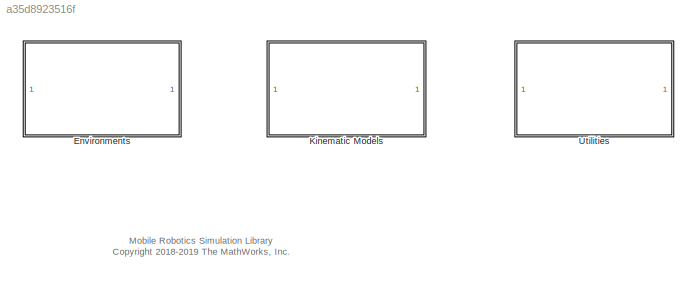
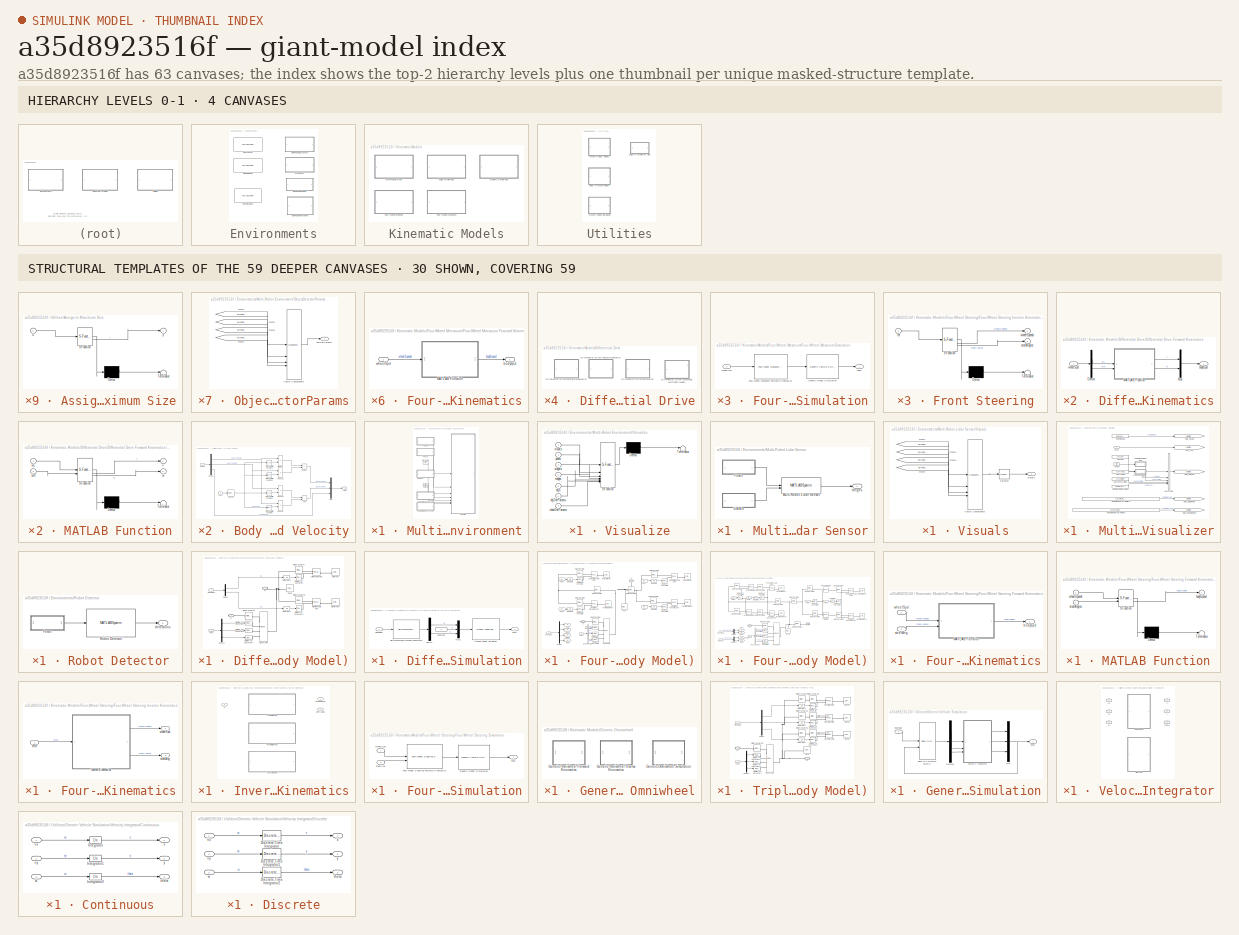
[diagram: thumbnail index - top-2 hierarchy levels (4 canvases) + 30 structural-template representatives of the remaining 59 canvases]
MODEL slx_a35d8923516f
KIND library
CONFIG AbsTol = auto
CONFIG EnableMultiTasking = off
CONFIG FixedStep = auto
CONFIG MaxStep = auto
CONFIG MinStep = auto
CONFIG RelTol = 1e-3
CONFIG SampleTimeConstraint = Unconstrained
CONFIG SolverName = VariableStepAuto
CONFIG StartTime = 0.0
CONFIG StopTime = 10.0
BLOCK [SubSystem] Environments
BLOCK [MATLABSystem] Environments/Lidar Sensor
  MaskDisplay = disp(['Lidar' char(10) 'Sensor']);\nport_label('input',1,'pose');\nport_label('output',1,'ranges');
  MaskType = LidarSensor
  System = LidarSensor
  maxRange = 5
  scanAngles = [ -pi/4, 0, pi/4 ]
  sensorOffset = [ 0, 0 ]
BLOCK [SubSystem] Environments/Multi-Robot Environment
  InitFcn = clear multiRobotVizWorld;
BLOCK [SubSystem] Environments/Multi-Robot Environment/ObjectDetectorParams
BLOCK [From] Environments/Multi-Robot Environment/ObjectDetectorParams/From1
  GotoTag = slMultiRobotEnv_ObjDet_1
  TagVisibility = global
BLOCK [From] Environments/Multi-Robot Environment/ObjectDetectorParams/From2
  GotoTag = slMultiRobotEnv_ObjDet_2
BLOCK [From] Environments/Multi-Robot Environment/ObjectDetectorParams/From3
  GotoTag = slMultiRobotEnv_ObjDet_3
BLOCK [From] Environments/Multi-Robot Environment/ObjectDetectorParams/From4
  GotoTag = slMultiRobotEnv_ObjDet_4
BLOCK [Concatenate] Environments/Multi-Robot Environment/ObjectDetectorParams/Vector Concatenate
  ConcatenateDimension = 2
  Mode = Multidimensional array
  NumInputs = 4
BLOCK [Outport] Environments/Multi-Robot Environment/ObjectDetectorParams/objDetParams
BLOCK [SubSystem] Environments/Multi-Robot Environment/Poses
BLOCK [From] Environments/Multi-Robot Environment/Poses/From1
  GotoTag = slMultiRobotEnv_Pose_1
  TagVisibility = global
BLOCK [From] Environments/Multi-Robot Environment/Poses/From2
  GotoTag = slMultiRobotEnv_Pose_2
BLOCK [From] Environments/Multi-Robot Environment/Poses/From3
  GotoTag = slMultiRobotEnv_Pose_3
BLOCK [From] Environments/Multi-Robot Environment/Poses/From4
  GotoTag = slMultiRobotEnv_Pose_4
BLOCK [Concatenate] Environments/Multi-Robot Environment/Poses/Vector Concatenate
  ConcatenateDimension = 2
  Mode = Multidimensional array
  NumInputs = 4
BLOCK [Outport] Environments/Multi-Robot Environment/Poses/poses
BLOCK [SubSystem] Environments/Multi-Robot Environment/Ranges
BLOCK [From] Environments/Multi-Robot Environment/Ranges/From1
  GotoTag = slMultiRobotEnv_Ranges_1
  TagVisibility = global
BLOCK [From] Environments/Multi-Robot Environment/Ranges/From2
  GotoTag = slMultiRobotEnv_Ranges_2
BLOCK [From] Environments/Multi-Robot Environment/Ranges/From3
  GotoTag = slMultiRobotEnv_Ranges_3
BLOCK [From] Environments/Multi-Robot Environment/Ranges/From4
  GotoTag = slMultiRobotEnv_Ranges_4
BLOCK [Concatenate] Environments/Multi-Robot Environment/Ranges/Vector Concatenate
  ConcatenateDimension = 2
  Mode = Multidimensional array
  NumInputs = 4
BLOCK [Outport] Environments/Multi-Robot Environment/Ranges/ranges
BLOCK [SubSystem] Environments/Multi-Robot Environment/RobotDetectorParams
BLOCK [From] Environments/Multi-Robot Environment/RobotDetectorParams/From1
  GotoTag = slMultiRobotEnv_RobotDet_1
  TagVisibility = global
BLOCK [From] Environments/Multi-Robot Environment/RobotDetectorParams/From2
  GotoTag = slMultiRobotEnv_RobotDet_2
BLOCK [From] Environments/Multi-Robot Environment/RobotDetectorParams/From3
  GotoTag = slMultiRobotEnv_RobotDet_3
BLOCK [From] Environments/Multi-Robot Environment/RobotDetectorParams/From4
  GotoTag = slMultiRobotEnv_RobotDet_4
BLOCK [Concatenate] Environments/Multi-Robot Environment/RobotDetectorParams/Vector Concatenate
  ConcatenateDimension = 2
  Mode = Multidimensional array
  NumInputs = 4
BLOCK [Outport] Environments/Multi-Robot Environment/RobotDetectorParams/robotDetParams
BLOCK [SubSystem] Environments/Multi-Robot Environment/Visualize
  ErrorFcn = Stateflow.Translate.translate
  PermitHierarchicalResolution = ExplicitOnly
  SFBlockType = MATLAB Function
  TreatAsAtomicUnit = on
BLOCK [Demux] Environments/Multi-Robot Environment/Visualize/ Demux 
  Outputs = 1
BLOCK [S-Function] Environments/Multi-Robot Environment/Visualize/ SFunction 
  EnableBusSupport = off
  FunctionName = sf_sfun
  Parameters = numRobots,plotSensorLines,showRobotIds
  PortCounts = [7 1]
  SFcnIsStateOwnerBlock = off
  SFunctionDeploymentMode = off
  Tag = Stateflow S-Function 11
BLOCK [Terminator] Environments/Multi-Robot Environment/Visualize/ Terminator 
BLOCK [Inport] Environments/Multi-Robot Environment/Visualize/objDetParams
  Port = 6
BLOCK [Inport] Environments/Multi-Robot Environment/Visualize/objs
  Port = 5
BLOCK [Inport] Environments/Multi-Robot Environment/Visualize/poses
  Port = 2
BLOCK [Inport] Environments/Multi-Robot Environment/Visualize/ranges
  Port = 4
BLOCK [Inport] Environments/Multi-Robot Environment/Visualize/robotDetParams
  Port = 7
BLOCK [Inport] Environments/Multi-Robot Environment/Visualize/visuals
BLOCK [Inport] Environments/Multi-Robot Environment/Visualize/waypts
  Port = 3
BLOCK [SubSystem] Environments/Multi-Robot Environment/Visuals
BLOCK [From] Environments/Multi-Robot Environment/Visuals/From1
  GotoTag = slMultiRobotEnv_Visuals_1
  TagVisibility = global
BLOCK [From] Environments/Multi-Robot Environment/Visuals/From2
  GotoTag = slMultiRobotEnv_Visuals_2
BLOCK [From] Environments/Multi-Robot Environment/Visuals/From3
  GotoTag = slMultiRobotEnv_Visuals_3
BLOCK [From] Environments/Multi-Robot Environment/Visuals/From4
  GotoTag = slMultiRobotEnv_Visuals_4
BLOCK [Concatenate] Environments/Multi-Robot Environment/Visuals/Vector Concatenate
  ConcatenateDimension = 2
  Mode = Multidimensional array
  NumInputs = 4
BLOCK [Outport] Environments/Multi-Robot Environment/Visuals/visuals
BLOCK [Ground] Environments/Multi-Robot Environment/objects
BLOCK [Ground] Environments/Multi-Robot Environment/waypoints
BLOCK [SubSystem] Environments/Multi-Robot Lidar Sensor
BLOCK [MATLABSystem] Environments/Multi-Robot Lidar Sensor/Multi-Robot Lidar Sensor
  MaskDisplay = disp(['Multi-Robot' char(10) 'Lidar 1']);\nport_label('output',1,'ranges');
  MaskType = MultiRobotLidarSensor
  System = MultiRobotLidarSensor
  maxRange = maxRange
  robotIdx = robotIdx
  robotRadii = -1
  scanAngles = scanAngles
  sensorOffset = sensorOffset
BLOCK [SubSystem] Environments/Multi-Robot Lidar Sensor/Poses
BLOCK [From] Environments/Multi-Robot Lidar Sensor/Poses/From1
  GotoTag = slMultiRobotEnv_Pose_1
  TagVisibility = global
BLOCK [From] Environments/Multi-Robot Lidar Sensor/Poses/From2
  GotoTag = slMultiRobotEnv_Pose_2
BLOCK [From] Environments/Multi-Robot Lidar Sensor/Poses/From3
  GotoTag = slMultiRobotEnv_Pose_3
BLOCK [From] Environments/Multi-Robot Lidar Sensor/Poses/From4
  GotoTag = slMultiRobotEnv_Pose_4
BLOCK [Concatenate] Environments/Multi-Robot Lidar Sensor/Poses/Vector Concatenate
  ConcatenateDimension = 2
  Mode = Multidimensional array
  NumInputs = 4
BLOCK [Outport] Environments/Multi-Robot Lidar Sensor/Poses/poses
BLOCK [SubSystem] Environments/Multi-Robot Lidar Sensor/Visuals
BLOCK [From] Environments/Multi-Robot Lidar Sensor/Visuals/From1
  GotoTag = slMultiRobotEnv_Visuals_1
  TagVisibility = global
BLOCK [From] Environments/Multi-Robot Lidar Sensor/Visuals/From2
  GotoTag = slMultiRobotEnv_Visuals_2
BLOCK [From] Environments/Multi-Robot Lidar Sensor/Visuals/From3
  GotoTag = slMultiRobotEnv_Visuals_3
BLOCK [From] Environments/Multi-Robot Lidar Sensor/Visuals/From4
  GotoTag = slMultiRobotEnv_Visuals_4
BLOCK [Selector] Environments/Multi-Robot Lidar Sensor/Visuals/Selector
  IndexOptions = Index vector (dialog),Select all
  Indices = 1,1
  InputPortWidth = 3
  NumberOfDimensions = 2
  OutputSizes = 1,1
BLOCK [Concatenate] Environments/Multi-Robot Lidar Sensor/Visuals/Vector Concatenate
  ConcatenateDimension = 2
  Mode = Multidimensional array
  NumInputs = 4
BLOCK [Outport] Environments/Multi-Robot Lidar Sensor/Visuals/visuals
BLOCK [Outport] Environments/Multi-Robot Lidar Sensor/ranges
  VectorParamsAs1DForOutWhenUnconnected = off
BLOCK [SubSystem] Environments/Multi-Robot Visualizer
BLOCK [SubSystem] Environments/Multi-Robot Visualizer/Assign to Maximum Size
  ErrorFcn = Stateflow.Translate.translate
  PermitHierarchicalResolution = ExplicitOnly
  SFBlockType = MATLAB Function
  TreatAsAtomicUnit = on
BLOCK [Demux] Environments/Multi-Robot Visualizer/Assign to Maximum Size/ Demux 
  Outputs = 1
BLOCK [S-Function] Environments/Multi-Robot Visualizer/Assign to Maximum Size/ SFunction 
  EnableBusSupport = off
  FunctionName = sf_sfun
  Parameters = maxLength
  PortCounts = [1 2]
  SFcnIsStateOwnerBlock = off
  SFunctionDeploymentMode = off
  Tag = Stateflow S-Function 15
BLOCK [Terminator] Environments/Multi-Robot Visualizer/Assign to Maximum Size/ Terminator 
BLOCK [Inport] Environments/Multi-Robot Visualizer/Assign to Maximum Size/u
BLOCK [Outport] Environments/Multi-Robot Visualizer/Assign to Maximum Size/y
BLOCK [SubSystem] Environments/Multi-Robot Visualizer/Assign to Maximum Size1
  ErrorFcn = Stateflow.Translate.translate
  PermitHierarchicalResolution = ExplicitOnly
  SFBlockType = MATLAB Function
  TreatAsAtomicUnit = on
BLOCK [Demux] Environments/Multi-Robot Visualizer/Assign to Maximum Size1/ Demux 
  Outputs = 1
BLOCK [S-Function] Environments/Multi-Robot Visualizer/Assign to Maximum Size1/ SFunction 
  EnableBusSupport = off
  FunctionName = sf_sfun
  Parameters = maxLength
  PortCounts = [1 2]
  SFcnIsStateOwnerBlock = off
  SFunctionDeploymentMode = off
  Tag = Stateflow S-Function 16
BLOCK [Terminator] Environments/Multi-Robot Visualizer/Assign to Maximum Size1/ Terminator 
BLOCK [Inport] Environments/Multi-Robot Visualizer/Assign to Maximum Size1/u
BLOCK [Outport] Environments/Multi-Robot Visualizer/Assign to Maximum Size1/y
BLOCK [BusCreator] Environments/Multi-Robot Visualizer/Bus Creator
  DisplayOption = bar
  InheritFromInputs = off
  Inputs = 5
  NonVirtualBus = on
  OutDataTypeStr = Bus: slbus_MultiRobotRangeSensor
BLOCK [Goto] Environments/Multi-Robot Visualizer/Goto_ObjDetector
  GotoTag = slMultiRobotEnv_ObjDet_1
  TagVisibility = global
BLOCK [Goto] Environments/Multi-Robot Visualizer/Goto_Pose
  GotoTag = slMultiRobotEnv_Pose_1
  TagVisibility = global
BLOCK [Goto] Environments/Multi-Robot Visualizer/Goto_Ranges
  GotoTag = slMultiRobotEnv_Ranges_1
  TagVisibility = global
BLOCK [Goto] Environments/Multi-Robot Visualizer/Goto_RobotDetector
  GotoTag = slMultiRobotEnv_RobotDet_1
  TagVisibility = global
BLOCK [Goto] Environments/Multi-Robot Visualizer/Goto_Visuals
  GotoTag = slMultiRobotEnv_Visuals_1
  TagVisibility = global
BLOCK [Constant] Environments/Multi-Robot Visualizer/Has Lidar
  OutDataTypeStr = boolean
  Value = hasLidar
BLOCK [Constant] Environments/Multi-Robot Visualizer/Lidar Angles
  Value = scanAngles
BLOCK [Constant] Environments/Multi-Robot Visualizer/Lidar Sensor Offset
  Value = sensorOffset
BLOCK [Constant] Environments/Multi-Robot Visualizer/Number of Lidar Angles
  Value = numel(scanAngles)
BLOCK [Constant] Environments/Multi-Robot Visualizer/Object Detector Parameters
  Value = [hasObjDetector objDetectorOffset objDetectorAngle objDetectorFOV objDetectorMaxRange]
BLOCK [Constant] Environments/Multi-Robot Visualizer/Robot Detector Parameters
  Value = [hasRobotDetector robotDetectorOffset robotDetectorAngle robotDetectorFOV robotDetectorMaxRange]
BLOCK [Constant] Environments/Multi-Robot Visualizer/Robot Visuals
  Value = [radius robotColor]
BLOCK [Inport] Environments/Multi-Robot Visualizer/pose
BLOCK [Ground] Environments/Multi-Robot Visualizer/ranges
BLOCK [MATLABSystem] Environments/Object Detector
  MaskDisplay = disp(['Object' char(10) 'Detector']);\nport_label('input',1,'pose');\nport_label('input',2,'objects');\nport_label('output',1,'detections');
  MaskType = ObjectDetector
  System = ObjectDetector
  fieldOfView = pi/3
  maxDetections = 3
  maxRange = 5
  sampleTime = 0.1
  sensorAngle = 0
  sensorOffset = [ 0, 0 ]
BLOCK [SubSystem] Environments/Robot Detector
BLOCK [SubSystem] Environments/Robot Detector/Poses
BLOCK [From] Environments/Robot Detector/Poses/From1
  GotoTag = slMultiRobotEnv_Pose_1
  TagVisibility = global
BLOCK [From] Environments/Robot Detector/Poses/From2
  GotoTag = slMultiRobotEnv_Pose_2
BLOCK [From] Environments/Robot Detector/Poses/From3
  GotoTag = slMultiRobotEnv_Pose_3
BLOCK [From] Environments/Robot Detector/Poses/From4
  GotoTag = slMultiRobotEnv_Pose_4
BLOCK [Concatenate] Environments/Robot Detector/Poses/Vector Concatenate
  ConcatenateDimension = 2
  Mode = Multidimensional array
  NumInputs = 4
BLOCK [Outport] Environments/Robot Detector/Poses/poses
BLOCK [MATLABSystem] Environments/Robot Detector/Robot Detector
  MaskDisplay = disp(['Robot 4' char(10) 'Detector']);\nport_label('output',1,'detections');
  MaskType = RobotDetector
  System = RobotDetector
  fieldOfView = sensorFOV
  mapName = map
  maxDetections = maxDetections
  maxRange = maxRange
  robotIdx = robotIdx
  sampleTime = sampleTime
  sensorAngle = sensorAngle
  sensorOffset = sensorOffset
BLOCK [Outport] Environments/Robot Detector/detections
  VectorParamsAs1DForOutWhenUnconnected = off
BLOCK [MATLABSystem] Environments/Robot Visualizer
  MaskDisplay = disp(['Robot' char(10) 'Visualizer']);\nport_label('input',1,'pose');\nport_label('input',2,'objects');
  MaskType = Visualizer2D
  System = Visualizer2D
  hasLidar = off
  hasObjDetector = on
  hasWaypoints = off
  objDetectorAngle = 0
  objDetectorFOV = pi/4
  objDetectorMaxRange = 5
  objDetectorOffset = [ 0, 0 ]
  objectColors = [ 1, 0, 0; 0, 1, 0; 0, 0, 1 ]
  objectMarkers = s
  robotRadius = 0
  scanAngles = [ -pi/4, 0, pi/4 ]
  sensorOffset = [ 0, 0 ]
  showTrajectory = on
BLOCK [SubSystem] Kinematic Models
BLOCK [SubSystem] Kinematic Models/Differential Drive
BLOCK [SubSystem] Kinematic Models/Differential Drive/Differential Drive (Simscape Multibody Model)
BLOCK [Reference] Kinematic Models/Differential Drive/Differential Drive (Simscape Multibody Model)/Base  REF=sm_lib/Body Elements/Cylindrical Solid
  SourceBlock = sm_lib/Body Elements/Cylindrical Solid
  SourceType = Cylindrical Solid
BLOCK [Demux] Kinematic Models/Differential Drive/Differential Drive (Simscape Multibody Model)/Demux
  Outputs = 2
BLOCK [Demux] Kinematic Models/Differential Drive/Differential Drive (Simscape Multibody Model)/Demux1
  Outputs = 3
BLOCK [PMIOPort] Kinematic Models/Differential Drive/Differential Drive (Simscape Multibody Model)/G
  Port = 2
  Side = Right
BLOCK [Integrator] Kinematic Models/Differential Drive/Differential Drive (Simscape Multibody Model)/Integrator3
BLOCK [Integrator] Kinematic Models/Differential Drive/Differential Drive (Simscape Multibody Model)/Integrator4
BLOCK [Reference] Kinematic Models/Differential Drive/Differential Drive (Simscape Multibody Model)/Left Revolute Joint  REF=sm_lib/Joints/Revolute Joint
  SourceBlock = sm_lib/Joints/Revolute Joint
  SourceType = Revolute Joint
BLOCK [Reference] Kinematic Models/Differential Drive/Differential Drive (Simscape Multibody Model)/Left Wheel  REF=sm_lib/Body Elements/Cylindrical Solid
  SourceBlock = sm_lib/Body Elements/Cylindrical Solid
  SourceType = Cylindrical Solid
BLOCK [Reference] Kinematic Models/Differential Drive/Differential Drive (Simscape Multibody Model)/Planar Joint  REF=sm_lib/Joints/Planar Joint
  SourceBlock = sm_lib/Joints/Planar Joint
  SourceType = Planar Joint
BLOCK [PMIOPort] Kinematic Models/Differential Drive/Differential Drive (Simscape Multibody Model)/R
  Side = Right
BLOCK [Reference] Kinematic Models/Differential Drive/Differential Drive (Simscape Multibody Model)/Right Revolute Joint  REF=sm_lib/Joints/Revolute Joint
  SourceBlock = sm_lib/Joints/Revolute Joint
  SourceType = Revolute Joint
BLOCK [Reference] Kinematic Models/Differential Drive/Differential Drive (Simscape Multibody Model)/Right Wheel  REF=sm_lib/Body Elements/Cylindrical Solid
  SourceBlock = sm_lib/Body Elements/Cylindrical Solid
  SourceType = Cylindrical Solid
BLOCK [Reference] Kinematic Models/Differential Drive/Differential Drive (Simscape Multibody Model)/Rigid Transform  REF=sm_lib/Frames and
Transforms/Rigid
Transform
  SourceBlock = sm_lib/Frames and\nTransforms/Rigid\nTransform
  SourceType = Rigid\nTransform
BLOCK [Reference] Kinematic Models/Differential Drive/Differential Drive (Simscape Multibody Model)/Rigid Transform1  REF=sm_lib/Frames and
Transforms/Rigid
Transform
  SourceBlock = sm_lib/Frames and\nTransforms/Rigid\nTransform
  SourceType = Rigid\nTransform
BLOCK [Reference] Kinematic Models/Differential Drive/Differential Drive (Simscape Multibody Model)/Rigid Transform2  REF=sm_lib/Frames and
Transforms/Rigid
Transform
  SourceBlock = sm_lib/Frames and\nTransforms/Rigid\nTransform
  SourceType = Rigid\nTransform
BLOCK [Reference] Kinematic Models/Differential Drive/Differential Drive (Simscape Multibody Model)/Simulink-PS Converter  REF=nesl_utility/Simulink-PS
Converter
  SourceBlock = nesl_utility/Simulink-PS\nConverter
  SourceType = Simulink-PS\nConverter
BLOCK [Reference] Kinematic Models/Differential Drive/Differential Drive (Simscape Multibody Model)/Simulink-PS Converter1  REF=nesl_utility/Simulink-PS
Converter
  SourceBlock = nesl_utility/Simulink-PS\nConverter
  SourceType = Simulink-PS\nConverter
BLOCK [Reference] Kinematic Models/Differential Drive/Differential Drive (Simscape Multibody Model)/Simulink-PS Converter2  REF=nesl_utility/Simulink-PS
Converter
  SourceBlock = nesl_utility/Simulink-PS\nConverter
  SourceType = Simulink-PS\nConverter
BLOCK [Reference] Kinematic Models/Differential Drive/Differential Drive (Simscape Multibody Model)/Simulink-PS Converter3  REF=nesl_utility/Simulink-PS
Converter
  SourceBlock = nesl_utility/Simulink-PS\nConverter
  SourceType = Simulink-PS\nConverter
BLOCK [Reference] Kinematic Models/Differential Drive/Differential Drive (Simscape Multibody Model)/Simulink-PS Converter4  REF=nesl_utility/Simulink-PS
Converter
  SourceBlock = nesl_utility/Simulink-PS\nConverter
  SourceType = Simulink-PS\nConverter
BLOCK [Inport] Kinematic Models/Differential Drive/Differential Drive (Simscape Multibody Model)/pose
  Port = 2
BLOCK [Inport] Kinematic Models/Differential Drive/Differential Drive (Simscape Multibody Model)/wheelSpd
BLOCK [SubSystem] Kinematic Models/Differential Drive/Differential Drive Forward Kinematics
BLOCK [Demux] Kinematic Models/Differential Drive/Differential Drive Forward Kinematics/Demux
  Outputs = 2
BLOCK [SubSystem] Kinematic Models/Differential Drive/Differential Drive Forward Kinematics/MATLAB Function
  ErrorFcn = Stateflow.Translate.translate
  PermitHierarchicalResolution = ExplicitOnly
  SFBlockType = MATLAB Function
  TreatAsAtomicUnit = on
BLOCK [Demux] Kinematic Models/Differential Drive/Differential Drive Forward Kinematics/MATLAB Function/ Demux 
  Outputs = 1
BLOCK [S-Function] Kinematic Models/Differential Drive/Differential Drive Forward Kinematics/MATLAB Function/ SFunction 
  EnableBusSupport = off
  FunctionName = sf_sfun
  Parameters = wheelBase,wheelRadius
  PortCounts = [2 3]
  SFcnIsStateOwnerBlock = off
  SFunctionDeploymentMode = off
  Tag = Stateflow S-Function 1
BLOCK [Terminator] Kinematic Models/Differential Drive/Differential Drive Forward Kinematics/MATLAB Function/ Terminator 
BLOCK [Outport] Kinematic Models/Differential Drive/Differential Drive Forward Kinematics/MATLAB Function/v
  VectorParamsAs1DForOutWhenUnconnected = off
BLOCK [Outport] Kinematic Models/Differential Drive/Differential Drive Forward Kinematics/MATLAB Function/w
  Port = 2
  VectorParamsAs1DForOutWhenUnconnected = off
BLOCK [Inport] Kinematic Models/Differential Drive/Differential Drive Forward Kinematics/MATLAB Function/wL
BLOCK [Inport] Kinematic Models/Differential Drive/Differential Drive Forward Kinematics/MATLAB Function/wR
  Port = 2
BLOCK [Mux] Kinematic Models/Differential Drive/Differential Drive Forward Kinematics/Mux
  DisplayOption = bar
  Inputs = 2
BLOCK [Outport] Kinematic Models/Differential Drive/Differential Drive Forward Kinematics/bodySpd
  VectorParamsAs1DForOutWhenUnconnected = off
BLOCK [Inport] Kinematic Models/Differential Drive/Differential Drive Forward Kinematics/wheelSpd
BLOCK [SubSystem] Kinematic Models/Differential Drive/Differential Drive Inverse Kinematics
BLOCK [Demux] Kinematic Models/Differential Drive/Differential Drive Inverse Kinematics/Demux
  Outputs = 2
BLOCK [SubSystem] Kinematic Models/Differential Drive/Differential Drive Inverse Kinematics/MATLAB Function
  ErrorFcn = Stateflow.Translate.translate
  PermitHierarchicalResolution = ExplicitOnly
  SFBlockType = MATLAB Function
  TreatAsAtomicUnit = on
BLOCK [Demux] Kinematic Models/Differential Drive/Differential Drive Inverse Kinematics/MATLAB Function/ Demux 
  Outputs = 1
BLOCK [S-Function] Kinematic Models/Differential Drive/Differential Drive Inverse Kinematics/MATLAB Function/ SFunction 
  EnableBusSupport = off
  FunctionName = sf_sfun
  Parameters = wheelBase,wheelRadius
  PortCounts = [2 3]
  SFcnIsStateOwnerBlock = off
  SFunctionDeploymentMode = off
  Tag = Stateflow S-Function 2
BLOCK [Terminator] Kinematic Models/Differential Drive/Differential Drive Inverse Kinematics/MATLAB Function/ Terminator 
BLOCK [Inport] Kinematic Models/Differential Drive/Differential Drive Inverse Kinematics/MATLAB Function/v
BLOCK [Inport] Kinematic Models/Differential Drive/Differential Drive Inverse Kinematics/MATLAB Function/w
  Port = 2
BLOCK [Outport] Kinematic Models/Differential Drive/Differential Drive Inverse Kinematics/MATLAB Function/wL
  VectorParamsAs1DForOutWhenUnconnected = off
BLOCK [Outport] Kinematic Models/Differential Drive/Differential Drive Inverse Kinematics/MATLAB Function/wR
  Port = 2
  VectorParamsAs1DForOutWhenUnconnected = off
BLOCK [Mux] Kinematic Models/Differential Drive/Differential Drive Inverse Kinematics/Mux
  DisplayOption = bar
  Inputs = 2
BLOCK [Inport] Kinematic Models/Differential Drive/Differential Drive Inverse Kinematics/vRef
BLOCK [Outport] Kinematic Models/Differential Drive/Differential Drive Inverse Kinematics/wheelSpd
  VectorParamsAs1DForOutWhenUnconnected = off
BLOCK [SubSystem] Kinematic Models/Differential Drive/Differential Drive Simulation
BLOCK [Constant] Kinematic Models/Differential Drive/Differential Drive Simulation/Constant
  Value = 0
BLOCK [Demux] Kinematic Models/Differential Drive/Differential Drive Simulation/Demux
  Outputs = 2
BLOCK [Reference] Kinematic Models/Differential Drive/Differential Drive Simulation/Differential Drive Forward Kinematics  REF=$bdroot/Kinematic Models/Differential Drive/Differential Drive
Forward Kinematics
  SourceBlock = $bdroot/Kinematic Models/Differential Drive/Differential Drive\nForward Kinematics
  SourceType = Differential Drive Forward Kinematics
BLOCK [Reference] Kinematic Models/Differential Drive/Differential Drive Simulation/Generic Robot Simulation  REF=$bdroot/Utilities/Generic Vehicle Simulation
  SourceBlock = $bdroot/Utilities/Generic Vehicle Simulation
  SourceType = Generic Vehicle Simulation
BLOCK [Mux] Kinematic Models/Differential Drive/Differential Drive Simulation/Mux1
  DisplayOption = bar
  Inputs = 3
BLOCK [Outport] Kinematic Models/Differential Drive/Differential Drive Simulation/pose
  VectorParamsAs1DForOutWhenUnconnected = off
BLOCK [Inport] Kinematic Models/Differential Drive/Differential Drive Simulation/wheelSpd
BLOCK [SubSystem] Kinematic Models/Four-Wheel Mecanum
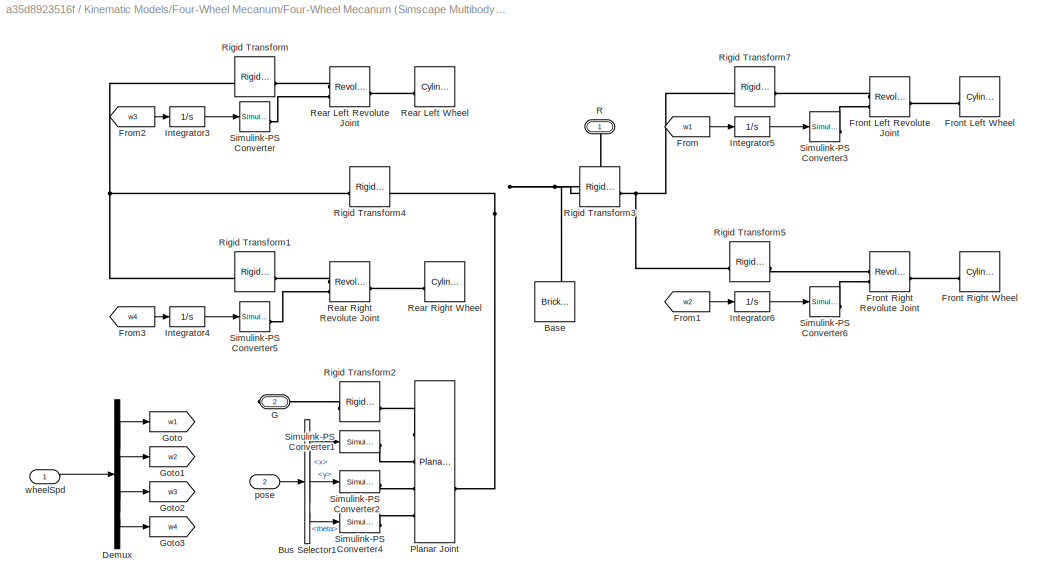
BLOCK [SubSystem] Kinematic Models/Four-Wheel Mecanum/Four-Wheel Mecanum (Simscape Multibody Model)
BLOCK [Reference] Kinematic Models/Four-Wheel Mecanum/Four-Wheel Mecanum (Simscape Multibody Model)/Base  REF=sm_lib/Body Elements/Brick Solid
  NameLocation = right
  SourceBlock = sm_lib/Body Elements/Brick Solid
  SourceType = Brick Solid
BLOCK [BusSelector] Kinematic Models/Four-Wheel Mecanum/Four-Wheel Mecanum (Simscape Multibody Model)/Bus Selector1
  OutputSignals = x,y,theta
BLOCK [Demux] Kinematic Models/Four-Wheel Mecanum/Four-Wheel Mecanum (Simscape Multibody Model)/Demux
BLOCK [From] Kinematic Models/Four-Wheel Mecanum/Four-Wheel Mecanum (Simscape Multibody Model)/From
  GotoTag = w1
BLOCK [From] Kinematic Models/Four-Wheel Mecanum/Four-Wheel Mecanum (Simscape Multibody Model)/From1
  GotoTag = w2
BLOCK [From] Kinematic Models/Four-Wheel Mecanum/Four-Wheel Mecanum (Simscape Multibody Model)/From2
  GotoTag = w3
BLOCK [From] Kinematic Models/Four-Wheel Mecanum/Four-Wheel Mecanum (Simscape Multibody Model)/From3
  GotoTag = w4
BLOCK [Reference] Kinematic Models/Four-Wheel Mecanum/Four-Wheel Mecanum (Simscape Multibody Model)/Front Left Revolute Joint  REF=sm_lib/Joints/Revolute Joint
  SourceBlock = sm_lib/Joints/Revolute Joint
  SourceType = Revolute Joint
BLOCK [Reference] Kinematic Models/Four-Wheel Mecanum/Four-Wheel Mecanum (Simscape Multibody Model)/Front Left Wheel  REF=sm_lib/Body Elements/Cylindrical Solid
  SourceBlock = sm_lib/Body Elements/Cylindrical Solid
  SourceType = Cylindrical Solid
BLOCK [Reference] Kinematic Models/Four-Wheel Mecanum/Four-Wheel Mecanum (Simscape Multibody Model)/Front Right Revolute Joint  REF=sm_lib/Joints/Revolute Joint
  SourceBlock = sm_lib/Joints/Revolute Joint
  SourceType = Revolute Joint
BLOCK [Reference] Kinematic Models/Four-Wheel Mecanum/Four-Wheel Mecanum (Simscape Multibody Model)/Front Right Wheel  REF=sm_lib/Body Elements/Cylindrical Solid
  SourceBlock = sm_lib/Body Elements/Cylindrical Solid
  SourceType = Cylindrical Solid
BLOCK [PMIOPort] Kinematic Models/Four-Wheel Mecanum/Four-Wheel Mecanum (Simscape Multibody Model)/G
  Port = 2
  Side = Right
BLOCK [Goto] Kinematic Models/Four-Wheel Mecanum/Four-Wheel Mecanum (Simscape Multibody Model)/Goto
  GotoTag = w1
BLOCK [Goto] Kinematic Models/Four-Wheel Mecanum/Four-Wheel Mecanum (Simscape Multibody Model)/Goto1
  GotoTag = w2
BLOCK [Goto] Kinematic Models/Four-Wheel Mecanum/Four-Wheel Mecanum (Simscape Multibody Model)/Goto2
  GotoTag = w3
BLOCK [Goto] Kinematic Models/Four-Wheel Mecanum/Four-Wheel Mecanum (Simscape Multibody Model)/Goto3
  GotoTag = w4
BLOCK [Integrator] Kinematic Models/Four-Wheel Mecanum/Four-Wheel Mecanum (Simscape Multibody Model)/Integrator3
BLOCK [Integrator] Kinematic Models/Four-Wheel Mecanum/Four-Wheel Mecanum (Simscape Multibody Model)/Integrator4
BLOCK [Integrator] Kinematic Models/Four-Wheel Mecanum/Four-Wheel Mecanum (Simscape Multibody Model)/Integrator5
BLOCK [Integrator] Kinematic Models/Four-Wheel Mecanum/Four-Wheel Mecanum (Simscape Multibody Model)/Integrator6
BLOCK [Reference] Kinematic Models/Four-Wheel Mecanum/Four-Wheel Mecanum (Simscape Multibody Model)/Planar Joint  REF=sm_lib/Joints/Planar Joint
  SourceBlock = sm_lib/Joints/Planar Joint
  SourceType = Planar Joint
BLOCK [PMIOPort] Kinematic Models/Four-Wheel Mecanum/Four-Wheel Mecanum (Simscape Multibody Model)/R
  Side = Right
BLOCK [Reference] Kinematic Models/Four-Wheel Mecanum/Four-Wheel Mecanum (Simscape Multibody Model)/Rear Left Revolute Joint  REF=sm_lib/Joints/Revolute Joint
  SourceBlock = sm_lib/Joints/Revolute Joint
  SourceType = Revolute Joint
BLOCK [Reference] Kinematic Models/Four-Wheel Mecanum/Four-Wheel Mecanum (Simscape Multibody Model)/Rear Left Wheel  REF=sm_lib/Body Elements/Cylindrical Solid
  SourceBlock = sm_lib/Body Elements/Cylindrical Solid
  SourceType = Cylindrical Solid
BLOCK [Reference] Kinematic Models/Four-Wheel Mecanum/Four-Wheel Mecanum (Simscape Multibody Model)/Rear Right Revolute Joint  REF=sm_lib/Joints/Revolute Joint
  SourceBlock = sm_lib/Joints/Revolute Joint
  SourceType = Revolute Joint
BLOCK [Reference] Kinematic Models/Four-Wheel Mecanum/Four-Wheel Mecanum (Simscape Multibody Model)/Rear Right Wheel  REF=sm_lib/Body Elements/Cylindrical Solid
  SourceBlock = sm_lib/Body Elements/Cylindrical Solid
  SourceType = Cylindrical Solid
BLOCK [Reference] Kinematic Models/Four-Wheel Mecanum/Four-Wheel Mecanum (Simscape Multibody Model)/Rigid Transform  REF=sm_lib/Frames and
Transforms/Rigid
Transform
  SourceBlock = sm_lib/Frames and\nTransforms/Rigid\nTransform
  SourceType = Rigid\nTransform
BLOCK [Reference] Kinematic Models/Four-Wheel Mecanum/Four-Wheel Mecanum (Simscape Multibody Model)/Rigid Transform1  REF=sm_lib/Frames and
Transforms/Rigid
Transform
  SourceBlock = sm_lib/Frames and\nTransforms/Rigid\nTransform
  SourceType = Rigid\nTransform
BLOCK [Reference] Kinematic Models/Four-Wheel Mecanum/Four-Wheel Mecanum (Simscape Multibody Model)/Rigid Transform2  REF=sm_lib/Frames and
Transforms/Rigid
Transform
  SourceBlock = sm_lib/Frames and\nTransforms/Rigid\nTransform
  SourceType = Rigid\nTransform
BLOCK [Reference] Kinematic Models/Four-Wheel Mecanum/Four-Wheel Mecanum (Simscape Multibody Model)/Rigid Transform3  REF=sm_lib/Frames and
Transforms/Rigid
Transform
  SourceBlock = sm_lib/Frames and\nTransforms/Rigid\nTransform
  SourceType = Rigid\nTransform
BLOCK [Reference] Kinematic Models/Four-Wheel Mecanum/Four-Wheel Mecanum (Simscape Multibody Model)/Rigid Transform4  REF=sm_lib/Frames and
Transforms/Rigid
Transform
  SourceBlock = sm_lib/Frames and\nTransforms/Rigid\nTransform
  SourceType = Rigid\nTransform
BLOCK [Reference] Kinematic Models/Four-Wheel Mecanum/Four-Wheel Mecanum (Simscape Multibody Model)/Rigid Transform5  REF=sm_lib/Frames and
Transforms/Rigid
Transform
  SourceBlock = sm_lib/Frames and\nTransforms/Rigid\nTransform
  SourceType = Rigid\nTransform
BLOCK [Reference] Kinematic Models/Four-Wheel Mecanum/Four-Wheel Mecanum (Simscape Multibody Model)/Rigid Transform7  REF=sm_lib/Frames and
Transforms/Rigid
Transform
  SourceBlock = sm_lib/Frames and\nTransforms/Rigid\nTransform
  SourceType = Rigid\nTransform
BLOCK [Reference] Kinematic Models/Four-Wheel Mecanum/Four-Wheel Mecanum (Simscape Multibody Model)/Simulink-PS Converter  REF=nesl_utility/Simulink-PS
Converter
  SourceBlock = nesl_utility/Simulink-PS\nConverter
  SourceType = Simulink-PS\nConverter
BLOCK [Reference] Kinematic Models/Four-Wheel Mecanum/Four-Wheel Mecanum (Simscape Multibody Model)/Simulink-PS Converter1  REF=nesl_utility/Simulink-PS
Converter
  SourceBlock = nesl_utility/Simulink-PS\nConverter
  SourceType = Simulink-PS\nConverter
BLOCK [Reference] Kinematic Models/Four-Wheel Mecanum/Four-Wheel Mecanum (Simscape Multibody Model)/Simulink-PS Converter2  REF=nesl_utility/Simulink-PS
Converter
  SourceBlock = nesl_utility/Simulink-PS\nConverter
  SourceType = Simulink-PS\nConverter
BLOCK [Reference] Kinematic Models/Four-Wheel Mecanum/Four-Wheel Mecanum (Simscape Multibody Model)/Simulink-PS Converter3  REF=nesl_utility/Simulink-PS
Converter
  SourceBlock = nesl_utility/Simulink-PS\nConverter
  SourceType = Simulink-PS\nConverter
BLOCK [Reference] Kinematic Models/Four-Wheel Mecanum/Four-Wheel Mecanum (Simscape Multibody Model)/Simulink-PS Converter4  REF=nesl_utility/Simulink-PS
Converter
  SourceBlock = nesl_utility/Simulink-PS\nConverter
  SourceType = Simulink-PS\nConverter
BLOCK [Reference] Kinematic Models/Four-Wheel Mecanum/Four-Wheel Mecanum (Simscape Multibody Model)/Simulink-PS Converter5  REF=nesl_utility/Simulink-PS
Converter
  SourceBlock = nesl_utility/Simulink-PS\nConverter
  SourceType = Simulink-PS\nConverter
BLOCK [Reference] Kinematic Models/Four-Wheel Mecanum/Four-Wheel Mecanum (Simscape Multibody Model)/Simulink-PS Converter6  REF=nesl_utility/Simulink-PS
Converter
  SourceBlock = nesl_utility/Simulink-PS\nConverter
  SourceType = Simulink-PS\nConverter
BLOCK [Inport] Kinematic Models/Four-Wheel Mecanum/Four-Wheel Mecanum (Simscape Multibody Model)/pose
  Port = 2
BLOCK [Inport] Kinematic Models/Four-Wheel Mecanum/Four-Wheel Mecanum (Simscape Multibody Model)/wheelSpd
BLOCK [SubSystem] Kinematic Models/Four-Wheel Mecanum/Four-Wheel Mecanum Forward Kinematics
BLOCK [SubSystem] Kinematic Models/Four-Wheel Mecanum/Four-Wheel Mecanum Forward Kinematics/MATLAB Function
  ErrorFcn = Stateflow.Translate.translate
  PermitHierarchicalResolution = ExplicitOnly
  SFBlockType = MATLAB Function
  TreatAsAtomicUnit = on
BLOCK [Demux] Kinematic Models/Four-Wheel Mecanum/Four-Wheel Mecanum Forward Kinematics/MATLAB Function/ Demux 
  Outputs = 1
BLOCK [S-Function] Kinematic Models/Four-Wheel Mecanum/Four-Wheel Mecanum Forward Kinematics/MATLAB Function/ SFunction 
  EnableBusSupport = off
  FunctionName = sf_sfun
  Parameters = wheelBase,wheelRadius,wheelTrack
  PortCounts = [1 2]
  SFcnIsStateOwnerBlock = off
  SFunctionDeploymentMode = off
  Tag = Stateflow S-Function 9
BLOCK [Terminator] Kinematic Models/Four-Wheel Mecanum/Four-Wheel Mecanum Forward Kinematics/MATLAB Function/ Terminator 
BLOCK [Outport] Kinematic Models/Four-Wheel Mecanum/Four-Wheel Mecanum Forward Kinematics/MATLAB Function/bodySpeed
  VectorParamsAs1DForOutWhenUnconnected = off
BLOCK [Inport] Kinematic Models/Four-Wheel Mecanum/Four-Wheel Mecanum Forward Kinematics/MATLAB Function/wheelSpeeds
BLOCK [Outport] Kinematic Models/Four-Wheel Mecanum/Four-Wheel Mecanum Forward Kinematics/bodySpd
  VectorParamsAs1DForOutWhenUnconnected = off
BLOCK [Inport] Kinematic Models/Four-Wheel Mecanum/Four-Wheel Mecanum Forward Kinematics/wheelSpd
BLOCK [SubSystem] Kinematic Models/Four-Wheel Mecanum/Four-Wheel Mecanum Inverse Kinematics
BLOCK [SubSystem] Kinematic Models/Four-Wheel Mecanum/Four-Wheel Mecanum Inverse Kinematics/MATLAB Function
  ErrorFcn = Stateflow.Translate.translate
  PermitHierarchicalResolution = ExplicitOnly
  SFBlockType = MATLAB Function
  TreatAsAtomicUnit = on
BLOCK [Demux] Kinematic Models/Four-Wheel Mecanum/Four-Wheel Mecanum Inverse Kinematics/MATLAB Function/ Demux 
  Outputs = 1
BLOCK [S-Function] Kinematic Models/Four-Wheel Mecanum/Four-Wheel Mecanum Inverse Kinematics/MATLAB Function/ SFunction 
  EnableBusSupport = off
  FunctionName = sf_sfun
  Parameters = wheelBase,wheelRadius,wheelTrack
  PortCounts = [1 2]
  SFcnIsStateOwnerBlock = off
  SFunctionDeploymentMode = off
  Tag = Stateflow S-Function 10
BLOCK [Terminator] Kinematic Models/Four-Wheel Mecanum/Four-Wheel Mecanum Inverse Kinematics/MATLAB Function/ Terminator 
BLOCK [Inport] Kinematic Models/Four-Wheel Mecanum/Four-Wheel Mecanum Inverse Kinematics/MATLAB Function/bodySpeed
BLOCK [Outport] Kinematic Models/Four-Wheel Mecanum/Four-Wheel Mecanum Inverse Kinematics/MATLAB Function/wheelSpeeds
  VectorParamsAs1DForOutWhenUnconnected = off
BLOCK [Inport] Kinematic Models/Four-Wheel Mecanum/Four-Wheel Mecanum Inverse Kinematics/vRef
BLOCK [Outport] Kinematic Models/Four-Wheel Mecanum/Four-Wheel Mecanum Inverse Kinematics/wheelSpd
  VectorParamsAs1DForOutWhenUnconnected = off
BLOCK [SubSystem] Kinematic Models/Four-Wheel Mecanum/Four-Wheel Mecanum Simulation
BLOCK [Reference] Kinematic Models/Four-Wheel Mecanum/Four-Wheel Mecanum Simulation/Four-Wheel Mecanum Forward Kinematics  REF=$bdroot/Kinematic Models/Four-Wheel Mecanum/Four-Wheel Mecanum
Forward Kinematics
  SourceBlock = $bdroot/Kinematic Models/Four-Wheel Mecanum/Four-Wheel Mecanum\nForward Kinematics
  SourceType = Four-Wheel Mecanum Forward Kinematics
BLOCK [Reference] Kinematic Models/Four-Wheel Mecanum/Four-Wheel Mecanum Simulation/Generic Robot Simulation  REF=$bdroot/Utilities/Generic Vehicle Simulation
  SourceBlock = $bdroot/Utilities/Generic Vehicle Simulation
  SourceType = Generic Vehicle Simulation
BLOCK [Outport] Kinematic Models/Four-Wheel Mecanum/Four-Wheel Mecanum Simulation/pose
  VectorParamsAs1DForOutWhenUnconnected = off
BLOCK [Inport] Kinematic Models/Four-Wheel Mecanum/Four-Wheel Mecanum Simulation/wheelSpd
BLOCK [SubSystem] Kinematic Models/Four-Wheel Steering
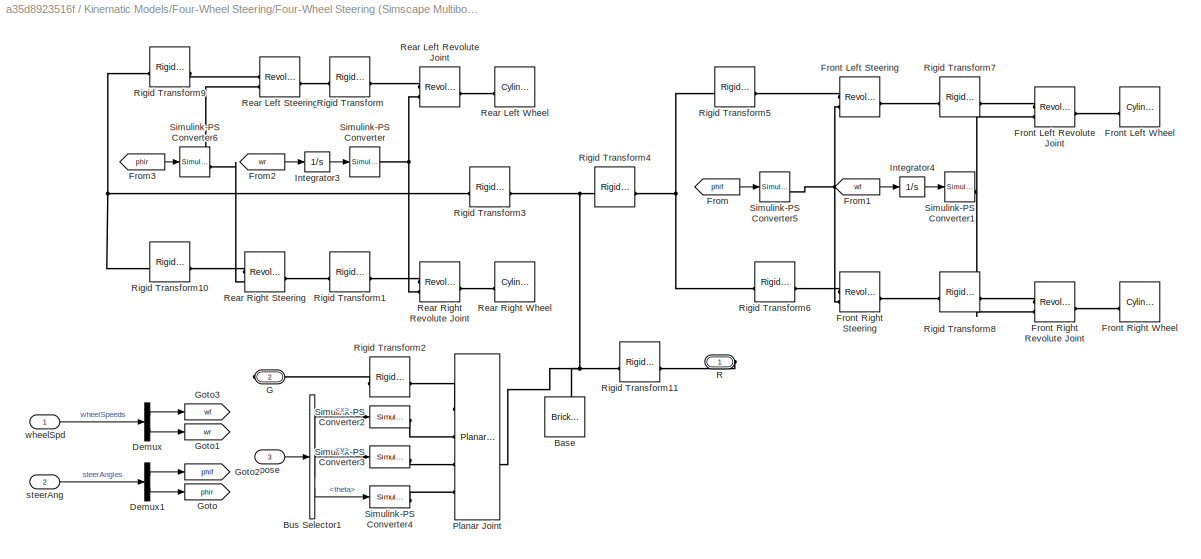
BLOCK [SubSystem] Kinematic Models/Four-Wheel Steering/Four-Wheel Steering (Simscape Multibody Model)
BLOCK [Reference] Kinematic Models/Four-Wheel Steering/Four-Wheel Steering (Simscape Multibody Model)/Base  REF=sm_lib/Body Elements/Brick Solid
  NameLocation = right
  SourceBlock = sm_lib/Body Elements/Brick Solid
  SourceType = Brick Solid
BLOCK [BusSelector] Kinematic Models/Four-Wheel Steering/Four-Wheel Steering (Simscape Multibody Model)/Bus Selector1
  OutputSignals = x,y,theta
BLOCK [Demux] Kinematic Models/Four-Wheel Steering/Four-Wheel Steering (Simscape Multibody Model)/Demux
  Outputs = 2
BLOCK [Demux] Kinematic Models/Four-Wheel Steering/Four-Wheel Steering (Simscape Multibody Model)/Demux1
  Outputs = 2
BLOCK [From] Kinematic Models/Four-Wheel Steering/Four-Wheel Steering (Simscape Multibody Model)/From
  GotoTag = phif
BLOCK [From] Kinematic Models/Four-Wheel Steering/Four-Wheel Steering (Simscape Multibody Model)/From1
  GotoTag = wf
BLOCK [From] Kinematic Models/Four-Wheel Steering/Four-Wheel Steering (Simscape Multibody Model)/From2
  GotoTag = wr
BLOCK [From] Kinematic Models/Four-Wheel Steering/Four-Wheel Steering (Simscape Multibody Model)/From3
  GotoTag = phir
BLOCK [Reference] Kinematic Models/Four-Wheel Steering/Four-Wheel Steering (Simscape Multibody Model)/Front Left Revolute Joint  REF=sm_lib/Joints/Revolute Joint
  SourceBlock = sm_lib/Joints/Revolute Joint
  SourceType = Revolute Joint
BLOCK [Reference] Kinematic Models/Four-Wheel Steering/Four-Wheel Steering (Simscape Multibody Model)/Front Left Steering  REF=sm_lib/Joints/Revolute Joint
  SourceBlock = sm_lib/Joints/Revolute Joint
  SourceType = Revolute Joint
BLOCK [Reference] Kinematic Models/Four-Wheel Steering/Four-Wheel Steering (Simscape Multibody Model)/Front Left Wheel  REF=sm_lib/Body Elements/Cylindrical Solid
  SourceBlock = sm_lib/Body Elements/Cylindrical Solid
  SourceType = Cylindrical Solid
BLOCK [Reference] Kinematic Models/Four-Wheel Steering/Four-Wheel Steering (Simscape Multibody Model)/Front Right Revolute Joint  REF=sm_lib/Joints/Revolute Joint
  SourceBlock = sm_lib/Joints/Revolute Joint
  SourceType = Revolute Joint
BLOCK [Reference] Kinematic Models/Four-Wheel Steering/Four-Wheel Steering (Simscape Multibody Model)/Front Right Steering  REF=sm_lib/Joints/Revolute Joint
  SourceBlock = sm_lib/Joints/Revolute Joint
  SourceType = Revolute Joint
BLOCK [Reference] Kinematic Models/Four-Wheel Steering/Four-Wheel Steering (Simscape Multibody Model)/Front Right Wheel  REF=sm_lib/Body Elements/Cylindrical Solid
  SourceBlock = sm_lib/Body Elements/Cylindrical Solid
  SourceType = Cylindrical Solid
BLOCK [PMIOPort] Kinematic Models/Four-Wheel Steering/Four-Wheel Steering (Simscape Multibody Model)/G
  Port = 2
  Side = Right
BLOCK [Goto] Kinematic Models/Four-Wheel Steering/Four-Wheel Steering (Simscape Multibody Model)/Goto
  GotoTag = phir
BLOCK [Goto] Kinematic Models/Four-Wheel Steering/Four-Wheel Steering (Simscape Multibody Model)/Goto1
  GotoTag = wr
BLOCK [Goto] Kinematic Models/Four-Wheel Steering/Four-Wheel Steering (Simscape Multibody Model)/Goto2
  GotoTag = phif
BLOCK [Goto] Kinematic Models/Four-Wheel Steering/Four-Wheel Steering (Simscape Multibody Model)/Goto3
  GotoTag = wf
BLOCK [Integrator] Kinematic Models/Four-Wheel Steering/Four-Wheel Steering (Simscape Multibody Model)/Integrator3
BLOCK [Integrator] Kinematic Models/Four-Wheel Steering/Four-Wheel Steering (Simscape Multibody Model)/Integrator4
BLOCK [Reference] Kinematic Models/Four-Wheel Steering/Four-Wheel Steering (Simscape Multibody Model)/Planar Joint  REF=sm_lib/Joints/Planar Joint
  SourceBlock = sm_lib/Joints/Planar Joint
  SourceType = Planar Joint
BLOCK [PMIOPort] Kinematic Models/Four-Wheel Steering/Four-Wheel Steering (Simscape Multibody Model)/R
  Side = Right
BLOCK [Reference] Kinematic Models/Four-Wheel Steering/Four-Wheel Steering (Simscape Multibody Model)/Rear Left Revolute Joint  REF=sm_lib/Joints/Revolute Joint
  SourceBlock = sm_lib/Joints/Revolute Joint
  SourceType = Revolute Joint
BLOCK [Reference] Kinematic Models/Four-Wheel Steering/Four-Wheel Steering (Simscape Multibody Model)/Rear Left Steering  REF=sm_lib/Joints/Revolute Joint
  SourceBlock = sm_lib/Joints/Revolute Joint
  SourceType = Revolute Joint
BLOCK [Reference] Kinematic Models/Four-Wheel Steering/Four-Wheel Steering (Simscape Multibody Model)/Rear Left Wheel  REF=sm_lib/Body Elements/Cylindrical Solid
  SourceBlock = sm_lib/Body Elements/Cylindrical Solid
  SourceType = Cylindrical Solid
BLOCK [Reference] Kinematic Models/Four-Wheel Steering/Four-Wheel Steering (Simscape Multibody Model)/Rear Right Revolute Joint  REF=sm_lib/Joints/Revolute Joint
  SourceBlock = sm_lib/Joints/Revolute Joint
  SourceType = Revolute Joint
BLOCK [Reference] Kinematic Models/Four-Wheel Steering/Four-Wheel Steering (Simscape Multibody Model)/Rear Right Steering  REF=sm_lib/Joints/Revolute Joint
  SourceBlock = sm_lib/Joints/Revolute Joint
  SourceType = Revolute Joint
BLOCK [Reference] Kinematic Models/Four-Wheel Steering/Four-Wheel Steering (Simscape Multibody Model)/Rear Right Wheel  REF=sm_lib/Body Elements/Cylindrical Solid
  SourceBlock = sm_lib/Body Elements/Cylindrical Solid
  SourceType = Cylindrical Solid
BLOCK [Reference] Kinematic Models/Four-Wheel Steering/Four-Wheel Steering (Simscape Multibody Model)/Rigid Transform  REF=sm_lib/Frames and
Transforms/Rigid
Transform
  SourceBlock = sm_lib/Frames and\nTransforms/Rigid\nTransform
  SourceType = Rigid\nTransform
BLOCK [Reference] Kinematic Models/Four-Wheel Steering/Four-Wheel Steering (Simscape Multibody Model)/Rigid Transform1  REF=sm_lib/Frames and
Transforms/Rigid
Transform
  SourceBlock = sm_lib/Frames and\nTransforms/Rigid\nTransform
  SourceType = Rigid\nTransform
BLOCK [Reference] Kinematic Models/Four-Wheel Steering/Four-Wheel Steering (Simscape Multibody Model)/Rigid Transform10  REF=sm_lib/Frames and
Transforms/Rigid
Transform
  SourceBlock = sm_lib/Frames and\nTransforms/Rigid\nTransform
  SourceType = Rigid\nTransform
BLOCK [Reference] Kinematic Models/Four-Wheel Steering/Four-Wheel Steering (Simscape Multibody Model)/Rigid Transform11  REF=sm_lib/Frames and
Transforms/Rigid
Transform
  SourceBlock = sm_lib/Frames and\nTransforms/Rigid\nTransform
  SourceType = Rigid\nTransform
BLOCK [Reference] Kinematic Models/Four-Wheel Steering/Four-Wheel Steering (Simscape Multibody Model)/Rigid Transform2  REF=sm_lib/Frames and
Transforms/Rigid
Transform
  SourceBlock = sm_lib/Frames and\nTransforms/Rigid\nTransform
  SourceType = Rigid\nTransform
BLOCK [Reference] Kinematic Models/Four-Wheel Steering/Four-Wheel Steering (Simscape Multibody Model)/Rigid Transform3  REF=sm_lib/Frames and
Transforms/Rigid
Transform
  SourceBlock = sm_lib/Frames and\nTransforms/Rigid\nTransform
  SourceType = Rigid\nTransform
BLOCK [Reference] Kinematic Models/Four-Wheel Steering/Four-Wheel Steering (Simscape Multibody Model)/Rigid Transform4  REF=sm_lib/Frames and
Transforms/Rigid
Transform
  SourceBlock = sm_lib/Frames and\nTransforms/Rigid\nTransform
  SourceType = Rigid\nTransform
BLOCK [Reference] Kinematic Models/Four-Wheel Steering/Four-Wheel Steering (Simscape Multibody Model)/Rigid Transform5  REF=sm_lib/Frames and
Transforms/Rigid
Transform
  SourceBlock = sm_lib/Frames and\nTransforms/Rigid\nTransform
  SourceType = Rigid\nTransform
BLOCK [Reference] Kinematic Models/Four-Wheel Steering/Four-Wheel Steering (Simscape Multibody Model)/Rigid Transform6  REF=sm_lib/Frames and
Transforms/Rigid
Transform
  SourceBlock = sm_lib/Frames and\nTransforms/Rigid\nTransform
  SourceType = Rigid\nTransform
BLOCK [Reference] Kinematic Models/Four-Wheel Steering/Four-Wheel Steering (Simscape Multibody Model)/Rigid Transform7  REF=sm_lib/Frames and
Transforms/Rigid
Transform
  SourceBlock = sm_lib/Frames and\nTransforms/Rigid\nTransform
  SourceType = Rigid\nTransform
BLOCK [Reference] Kinematic Models/Four-Wheel Steering/Four-Wheel Steering (Simscape Multibody Model)/Rigid Transform8  REF=sm_lib/Frames and
Transforms/Rigid
Transform
  SourceBlock = sm_lib/Frames and\nTransforms/Rigid\nTransform
  SourceType = Rigid\nTransform
BLOCK [Reference] Kinematic Models/Four-Wheel Steering/Four-Wheel Steering (Simscape Multibody Model)/Rigid Transform9  REF=sm_lib/Frames and
Transforms/Rigid
Transform
  SourceBlock = sm_lib/Frames and\nTransforms/Rigid\nTransform
  SourceType = Rigid\nTransform
BLOCK [Reference] Kinematic Models/Four-Wheel Steering/Four-Wheel Steering (Simscape Multibody Model)/Simulink-PS Converter  REF=nesl_utility/Simulink-PS
Converter
  SourceBlock = nesl_utility/Simulink-PS\nConverter
  SourceType = Simulink-PS\nConverter
BLOCK [Reference] Kinematic Models/Four-Wheel Steering/Four-Wheel Steering (Simscape Multibody Model)/Simulink-PS Converter1  REF=nesl_utility/Simulink-PS
Converter
  SourceBlock = nesl_utility/Simulink-PS\nConverter
  SourceType = Simulink-PS\nConverter
BLOCK [Reference] Kinematic Models/Four-Wheel Steering/Four-Wheel Steering (Simscape Multibody Model)/Simulink-PS Converter2  REF=nesl_utility/Simulink-PS
Converter
  SourceBlock = nesl_utility/Simulink-PS\nConverter
  SourceType = Simulink-PS\nConverter
BLOCK [Reference] Kinematic Models/Four-Wheel Steering/Four-Wheel Steering (Simscape Multibody Model)/Simulink-PS Converter3  REF=nesl_utility/Simulink-PS
Converter
  SourceBlock = nesl_utility/Simulink-PS\nConverter
  SourceType = Simulink-PS\nConverter
BLOCK [Reference] Kinematic Models/Four-Wheel Steering/Four-Wheel Steering (Simscape Multibody Model)/Simulink-PS Converter4  REF=nesl_utility/Simulink-PS
Converter
  SourceBlock = nesl_utility/Simulink-PS\nConverter
  SourceType = Simulink-PS\nConverter
BLOCK [Reference] Kinematic Models/Four-Wheel Steering/Four-Wheel Steering (Simscape Multibody Model)/Simulink-PS Converter5  REF=nesl_utility/Simulink-PS
Converter
  SourceBlock = nesl_utility/Simulink-PS\nConverter
  SourceType = Simulink-PS\nConverter
BLOCK [Reference] Kinematic Models/Four-Wheel Steering/Four-Wheel Steering (Simscape Multibody Model)/Simulink-PS Converter6  REF=nesl_utility/Simulink-PS
Converter
  SourceBlock = nesl_utility/Simulink-PS\nConverter
  SourceType = Simulink-PS\nConverter
BLOCK [Inport] Kinematic Models/Four-Wheel Steering/Four-Wheel Steering (Simscape Multibody Model)/pose
  Port = 3
BLOCK [Inport] Kinematic Models/Four-Wheel Steering/Four-Wheel Steering (Simscape Multibody Model)/steerAng
  Port = 2
BLOCK [Inport] Kinematic Models/Four-Wheel Steering/Four-Wheel Steering (Simscape Multibody Model)/wheelSpd
BLOCK [SubSystem] Kinematic Models/Four-Wheel Steering/Four-Wheel Steering Forward Kinematics
BLOCK [SubSystem] Kinematic Models/Four-Wheel Steering/Four-Wheel Steering Forward Kinematics/MATLAB Function
  ErrorFcn = Stateflow.Translate.translate
  PermitHierarchicalResolution = ExplicitOnly
  SFBlockType = MATLAB Function
  TreatAsAtomicUnit = on
BLOCK [Demux] Kinematic Models/Four-Wheel Steering/Four-Wheel Steering Forward Kinematics/MATLAB Function/ Demux 
  Outputs = 1
BLOCK [S-Function] Kinematic Models/Four-Wheel Steering/Four-Wheel Steering Forward Kinematics/MATLAB Function/ SFunction 
  EnableBusSupport = off
  FunctionName = sf_sfun
  Parameters = frontWheelDist,rearWheelDist,wheelRadius
  PortCounts = [2 2]
  SFcnIsStateOwnerBlock = off
  SFunctionDeploymentMode = off
  Tag = Stateflow S-Function 3
BLOCK [Terminator] Kinematic Models/Four-Wheel Steering/Four-Wheel Steering Forward Kinematics/MATLAB Function/ Terminator 
BLOCK [Outport] Kinematic Models/Four-Wheel Steering/Four-Wheel Steering Forward Kinematics/MATLAB Function/bodySpeed
  VectorParamsAs1DForOutWhenUnconnected = off
BLOCK [Inport] Kinematic Models/Four-Wheel Steering/Four-Wheel Steering Forward Kinematics/MATLAB Function/steerAngles
  Port = 2
BLOCK [Inport] Kinematic Models/Four-Wheel Steering/Four-Wheel Steering Forward Kinematics/MATLAB Function/wheelSpeeds
BLOCK [Outport] Kinematic Models/Four-Wheel Steering/Four-Wheel Steering Forward Kinematics/bodySpd
  VectorParamsAs1DForOutWhenUnconnected = off
BLOCK [Inport] Kinematic Models/Four-Wheel Steering/Four-Wheel Steering Forward Kinematics/steerAng
  Port = 2
BLOCK [Inport] Kinematic Models/Four-Wheel Steering/Four-Wheel Steering Forward Kinematics/wheelSpd
BLOCK [SubSystem] Kinematic Models/Four-Wheel Steering/Four-Wheel Steering Inverse Kinematics
BLOCK [SubSystem] Kinematic Models/Four-Wheel Steering/Four-Wheel Steering Inverse Kinematics/Inverse Kinematics
  LabelModeActiveChoice = mode==1
  Variant = on
  VariantControl = Variant1
  VariantControlMode = label
BLOCK [Outport] Kinematic Models/Four-Wheel Steering/Four-Wheel Steering Inverse Kinematics/Inverse Kinematics/ steerAngles
  Port = 2
  VectorParamsAs1DForOutWhenUnconnected = off
BLOCK [Outport] Kinematic Models/Four-Wheel Steering/Four-Wheel Steering Inverse Kinematics/Inverse Kinematics/ wheelSpeeds
  VectorParamsAs1DForOutWhenUnconnected = off
BLOCK [SubSystem] Kinematic Models/Four-Wheel Steering/Four-Wheel Steering Inverse Kinematics/Inverse Kinematics/Front Steering
  ErrorFcn = Stateflow.Translate.translate
  PermitHierarchicalResolution = ExplicitOnly
  SFBlockType = MATLAB Function
  TreatAsAtomicUnit = on
  VariantControl = mode==1
BLOCK [Demux] Kinematic Models/Four-Wheel Steering/Four-Wheel Steering Inverse Kinematics/Inverse Kinematics/Front Steering/ Demux 
  Outputs = 1
BLOCK [S-Function] Kinematic Models/Four-Wheel Steering/Four-Wheel Steering Inverse Kinematics/Inverse Kinematics/Front Steering/ SFunction 
  EnableBusSupport = off
  FunctionName = sf_sfun
  Parameters = frontWheelDist,rearWheelDist,wheelRadius
  PortCounts = [1 3]
  SFcnIsStateOwnerBlock = off
  SFunctionDeploymentMode = off
  Tag = Stateflow S-Function 5
BLOCK [Terminator] Kinematic Models/Four-Wheel Steering/Four-Wheel Steering Inverse Kinematics/Inverse Kinematics/Front Steering/ Terminator 
BLOCK [Inport] Kinematic Models/Four-Wheel Steering/Four-Wheel Steering Inverse Kinematics/Inverse Kinematics/Front Steering/ref
BLOCK [Outport] Kinematic Models/Four-Wheel Steering/Four-Wheel Steering Inverse Kinematics/Inverse Kinematics/Front Steering/steerAngles
  Port = 2
  VectorParamsAs1DForOutWhenUnconnected = off
BLOCK [Outport] Kinematic Models/Four-Wheel Steering/Four-Wheel Steering Inverse Kinematics/Inverse Kinematics/Front Steering/wheelSpeeds
  VectorParamsAs1DForOutWhenUnconnected = off
BLOCK [SubSystem] Kinematic Models/Four-Wheel Steering/Four-Wheel Steering Inverse Kinematics/Inverse Kinematics/Parallel Steering
  ErrorFcn = Stateflow.Translate.translate
  PermitHierarchicalResolution = ExplicitOnly
  SFBlockType = MATLAB Function
  TreatAsAtomicUnit = on
  VariantControl = mode==2
BLOCK [Demux] Kinematic Models/Four-Wheel Steering/Four-Wheel Steering Inverse Kinematics/Inverse Kinematics/Parallel Steering/ Demux 
  Outputs = 1
BLOCK [S-Function] Kinematic Models/Four-Wheel Steering/Four-Wheel Steering Inverse Kinematics/Inverse Kinematics/Parallel Steering/ SFunction 
  EnableBusSupport = off
  FunctionName = sf_sfun
  Parameters = frontWheelDist,rearWheelDist,wheelRadius
  PortCounts = [1 3]
  SFcnIsStateOwnerBlock = off
  SFunctionDeploymentMode = off
  Tag = Stateflow S-Function 8
BLOCK [Terminator] Kinematic Models/Four-Wheel Steering/Four-Wheel Steering Inverse Kinematics/Inverse Kinematics/Parallel Steering/ Terminator 
BLOCK [Inport] Kinematic Models/Four-Wheel Steering/Four-Wheel Steering Inverse Kinematics/Inverse Kinematics/Parallel Steering/ref
BLOCK [Outport] Kinematic Models/Four-Wheel Steering/Four-Wheel Steering Inverse Kinematics/Inverse Kinematics/Parallel Steering/steerAngles
  Port = 2
  VectorParamsAs1DForOutWhenUnconnected = off
BLOCK [Outport] Kinematic Models/Four-Wheel Steering/Four-Wheel Steering Inverse Kinematics/Inverse Kinematics/Parallel Steering/wheelSpeeds
  VectorParamsAs1DForOutWhenUnconnected = off
BLOCK [SubSystem] Kinematic Models/Four-Wheel Steering/Four-Wheel Steering Inverse Kinematics/Inverse Kinematics/Zero Sideslip
  ErrorFcn = Stateflow.Translate.translate
  PermitHierarchicalResolution = ExplicitOnly
  SFBlockType = MATLAB Function
  TreatAsAtomicUnit = on
  VariantControl = mode==3
BLOCK [Demux] Kinematic Models/Four-Wheel Steering/Four-Wheel Steering Inverse Kinematics/Inverse Kinematics/Zero Sideslip/ Demux 
  Outputs = 1
BLOCK [S-Function] Kinematic Models/Four-Wheel Steering/Four-Wheel Steering Inverse Kinematics/Inverse Kinematics/Zero Sideslip/ SFunction 
  EnableBusSupport = off
  FunctionName = sf_sfun
  Parameters = frontWheelDist,rearWheelDist,wheelRadius
  PortCounts = [1 3]
  SFcnIsStateOwnerBlock = off
  SFunctionDeploymentMode = off
  Tag = Stateflow S-Function 7
BLOCK [Terminator] Kinematic Models/Four-Wheel Steering/Four-Wheel Steering Inverse Kinematics/Inverse Kinematics/Zero Sideslip/ Terminator 
BLOCK [Inport] Kinematic Models/Four-Wheel Steering/Four-Wheel Steering Inverse Kinematics/Inverse Kinematics/Zero Sideslip/ref
BLOCK [Outport] Kinematic Models/Four-Wheel Steering/Four-Wheel Steering Inverse Kinematics/Inverse Kinematics/Zero Sideslip/steerAngles
  Port = 2
  VectorParamsAs1DForOutWhenUnconnected = off
BLOCK [Outport] Kinematic Models/Four-Wheel Steering/Four-Wheel Steering Inverse Kinematics/Inverse Kinematics/Zero Sideslip/wheelSpeeds
  VectorParamsAs1DForOutWhenUnconnected = off
BLOCK [Inport] Kinematic Models/Four-Wheel Steering/Four-Wheel Steering Inverse Kinematics/Inverse Kinematics/ref
BLOCK [Outport] Kinematic Models/Four-Wheel Steering/Four-Wheel Steering Inverse Kinematics/steerAng
  Port = 2
  VectorParamsAs1DForOutWhenUnconnected = off
BLOCK [Inport] Kinematic Models/Four-Wheel Steering/Four-Wheel Steering Inverse Kinematics/vRef
BLOCK [Outport] Kinematic Models/Four-Wheel Steering/Four-Wheel Steering Inverse Kinematics/wheelSpd
  VectorParamsAs1DForOutWhenUnconnected = off
BLOCK [SubSystem] Kinematic Models/Four-Wheel Steering/Four-Wheel Steering Simulation
BLOCK [Reference] Kinematic Models/Four-Wheel Steering/Four-Wheel Steering Simulation/Four-Wheel Steering Forward Kinematics  REF=$bdroot/Kinematic Models/Four-Wheel Steering/Four-Wheel Steering
Forward Kinematics
  SourceBlock = $bdroot/Kinematic Models/Four-Wheel Steering/Four-Wheel Steering\nForward Kinematics
  SourceType = Four-Wheel Steering Forward Kinematics
BLOCK [Reference] Kinematic Models/Four-Wheel Steering/Four-Wheel Steering Simulation/Generic Robot Simulation  REF=$bdroot/Utilities/Generic Vehicle Simulation
  SourceBlock = $bdroot/Utilities/Generic Vehicle Simulation
  SourceType = Generic Vehicle Simulation
BLOCK [Outport] Kinematic Models/Four-Wheel Steering/Four-Wheel Steering Simulation/pose
  VectorParamsAs1DForOutWhenUnconnected = off
BLOCK [Inport] Kinematic Models/Four-Wheel Steering/Four-Wheel Steering Simulation/steerAng
  Port = 2
BLOCK [Inport] Kinematic Models/Four-Wheel Steering/Four-Wheel Steering Simulation/wheelSpd
BLOCK [SubSystem] Kinematic Models/Generic Omniwheel
BLOCK [SubSystem] Kinematic Models/Generic Omniwheel/Generic Omniwheel Forward Kinematics
BLOCK [SubSystem] Kinematic Models/Generic Omniwheel/Generic Omniwheel Forward Kinematics/MATLAB Function
  ErrorFcn = Stateflow.Translate.translate
  PermitHierarchicalResolution = ExplicitOnly
  SFBlockType = MATLAB Function
  TreatAsAtomicUnit = on
BLOCK [Demux] Kinematic Models/Generic Omniwheel/Generic Omniwheel Forward Kinematics/MATLAB Function/ Demux 
  Outputs = 1
BLOCK [S-Function] Kinematic Models/Generic Omniwheel/Generic Omniwheel Forward Kinematics/MATLAB Function/ SFunction 
  EnableBusSupport = off
  FunctionName = sf_sfun
  Parameters = wheelAngles,wheelPositions,wheelRadius
  PortCounts = [1 2]
  SFcnIsStateOwnerBlock = off
  SFunctionDeploymentMode = off
  Tag = Stateflow S-Function 13
BLOCK [Terminator] Kinematic Models/Generic Omniwheel/Generic Omniwheel Forward Kinematics/MATLAB Function/ Terminator 
BLOCK [Outport] Kinematic Models/Generic Omniwheel/Generic Omniwheel Forward Kinematics/MATLAB Function/bodySpeed
  VectorParamsAs1DForOutWhenUnconnected = off
BLOCK [Inport] Kinematic Models/Generic Omniwheel/Generic Omniwheel Forward Kinematics/MATLAB Function/wheelSpeeds
BLOCK [Outport] Kinematic Models/Generic Omniwheel/Generic Omniwheel Forward Kinematics/bodySpd
  VectorParamsAs1DForOutWhenUnconnected = off
BLOCK [Inport] Kinematic Models/Generic Omniwheel/Generic Omniwheel Forward Kinematics/wheelSpd
BLOCK [SubSystem] Kinematic Models/Generic Omniwheel/Generic Omniwheel Inverse Kinematics 
BLOCK [SubSystem] Kinematic Models/Generic Omniwheel/Generic Omniwheel Inverse Kinematics /MATLAB Function
  ErrorFcn = Stateflow.Translate.translate
  PermitHierarchicalResolution = ExplicitOnly
  SFBlockType = MATLAB Function
  TreatAsAtomicUnit = on
BLOCK [Demux] Kinematic Models/Generic Omniwheel/Generic Omniwheel Inverse Kinematics /MATLAB Function/ Demux 
  Outputs = 1
BLOCK [S-Function] Kinematic Models/Generic Omniwheel/Generic Omniwheel Inverse Kinematics /MATLAB Function/ SFunction 
  EnableBusSupport = off
  FunctionName = sf_sfun
  Parameters = wheelAngles,wheelPositions,wheelRadius
  PortCounts = [1 2]
  SFcnIsStateOwnerBlock = off
  SFunctionDeploymentMode = off
  Tag = Stateflow S-Function 14
BLOCK [Terminator] Kinematic Models/Generic Omniwheel/Generic Omniwheel Inverse Kinematics /MATLAB Function/ Terminator 
BLOCK [Inport] Kinematic Models/Generic Omniwheel/Generic Omniwheel Inverse Kinematics /MATLAB Function/bodySpeed
BLOCK [Outport] Kinematic Models/Generic Omniwheel/Generic Omniwheel Inverse Kinematics /MATLAB Function/wheelSpeeds
  VectorParamsAs1DForOutWhenUnconnected = off
BLOCK [Inport] Kinematic Models/Generic Omniwheel/Generic Omniwheel Inverse Kinematics /vRef
BLOCK [Outport] Kinematic Models/Generic Omniwheel/Generic Omniwheel Inverse Kinematics /wheelSpd
  VectorParamsAs1DForOutWhenUnconnected = off
BLOCK [SubSystem] Kinematic Models/Generic Omniwheel/Generic Omniwheel Simulation
BLOCK [Reference] Kinematic Models/Generic Omniwheel/Generic Omniwheel Simulation/Generic Omniwheel Forward Kinematics  REF=$bdroot/Kinematic Models/Generic Omniwheel/Generic Omniwheel 
Forward Kinematics
  SourceBlock = $bdroot/Kinematic Models/Generic Omniwheel/Generic Omniwheel \nForward Kinematics
  SourceType = Generic Omniwheel Forward Kinematics
BLOCK [Reference] Kinematic Models/Generic Omniwheel/Generic Omniwheel Simulation/Generic Robot Simulation  REF=$bdroot/Utilities/Generic Vehicle Simulation
  SourceBlock = $bdroot/Utilities/Generic Vehicle Simulation
  SourceType = Generic Vehicle Simulation
BLOCK [Outport] Kinematic Models/Generic Omniwheel/Generic Omniwheel Simulation/pose
  VectorParamsAs1DForOutWhenUnconnected = off
BLOCK [Inport] Kinematic Models/Generic Omniwheel/Generic Omniwheel Simulation/wheelSpd
BLOCK [SubSystem] Kinematic Models/Triple Omniwheel
BLOCK [SubSystem] Kinematic Models/Triple Omniwheel/Triple Omniwheel (Simscape Multibody Model)
BLOCK [Reference] Kinematic Models/Triple Omniwheel/Triple Omniwheel (Simscape Multibody Model)/Base  REF=sm_lib/Body Elements/Cylindrical Solid
  SourceBlock = sm_lib/Body Elements/Cylindrical Solid
  SourceType = Cylindrical Solid
BLOCK [Demux] Kinematic Models/Triple Omniwheel/Triple Omniwheel (Simscape Multibody Model)/Demux
  Outputs = 3
BLOCK [Demux] Kinematic Models/Triple Omniwheel/Triple Omniwheel (Simscape Multibody Model)/Demux1
  Outputs = 3
BLOCK [PMIOPort] Kinematic Models/Triple Omniwheel/Triple Omniwheel (Simscape Multibody Model)/G
  Port = 2
  Side = Right
BLOCK [Integrator] Kinematic Models/Triple Omniwheel/Triple Omniwheel (Simscape Multibody Model)/Integrator3
BLOCK [Integrator] Kinematic Models/Triple Omniwheel/Triple Omniwheel (Simscape Multibody Model)/Integrator4
BLOCK [Integrator] Kinematic Models/Triple Omniwheel/Triple Omniwheel (Simscape Multibody Model)/Integrator5
BLOCK [Reference] Kinematic Models/Triple Omniwheel/Triple Omniwheel (Simscape Multibody Model)/Planar Joint  REF=sm_lib/Joints/Planar Joint
  SourceBlock = sm_lib/Joints/Planar Joint
  SourceType = Planar Joint
BLOCK [PMIOPort] Kinematic Models/Triple Omniwheel/Triple Omniwheel (Simscape Multibody Model)/R
  Side = Right
BLOCK [Reference] Kinematic Models/Triple Omniwheel/Triple Omniwheel (Simscape Multibody Model)/Revolute Joint 1  REF=sm_lib/Joints/Revolute Joint
  SourceBlock = sm_lib/Joints/Revolute Joint
  SourceType = Revolute Joint
BLOCK [Reference] Kinematic Models/Triple Omniwheel/Triple Omniwheel (Simscape Multibody Model)/Revolute Joint 2  REF=sm_lib/Joints/Revolute Joint
  SourceBlock = sm_lib/Joints/Revolute Joint
  SourceType = Revolute Joint
BLOCK [Reference] Kinematic Models/Triple Omniwheel/Triple Omniwheel (Simscape Multibody Model)/Revolute Joint 3  REF=sm_lib/Joints/Revolute Joint
  SourceBlock = sm_lib/Joints/Revolute Joint
  SourceType = Revolute Joint
BLOCK [Reference] Kinematic Models/Triple Omniwheel/Triple Omniwheel (Simscape Multibody Model)/Rigid Transform  REF=sm_lib/Frames and
Transforms/Rigid
Transform
  SourceBlock = sm_lib/Frames and\nTransforms/Rigid\nTransform
  SourceType = Rigid\nTransform
BLOCK [Reference] Kinematic Models/Triple Omniwheel/Triple Omniwheel (Simscape Multibody Model)/Rigid Transform1  REF=sm_lib/Frames and
Transforms/Rigid
Transform
  SourceBlock = sm_lib/Frames and\nTransforms/Rigid\nTransform
  SourceType = Rigid\nTransform
BLOCK [Reference] Kinematic Models/Triple Omniwheel/Triple Omniwheel (Simscape Multibody Model)/Rigid Transform2  REF=sm_lib/Frames and
Transforms/Rigid
Transform
  SourceBlock = sm_lib/Frames and\nTransforms/Rigid\nTransform
  SourceType = Rigid\nTransform
BLOCK [Reference] Kinematic Models/Triple Omniwheel/Triple Omniwheel (Simscape Multibody Model)/Rigid Transform3  REF=sm_lib/Frames and
Transforms/Rigid
Transform
  SourceBlock = sm_lib/Frames and\nTransforms/Rigid\nTransform
  SourceType = Rigid\nTransform
BLOCK [Reference] Kinematic Models/Triple Omniwheel/Triple Omniwheel (Simscape Multibody Model)/Rigid Transform4  REF=sm_lib/Frames and
Transforms/Rigid
Transform
  SourceBlock = sm_lib/Frames and\nTransforms/Rigid\nTransform
  SourceType = Rigid\nTransform
BLOCK [Reference] Kinematic Models/Triple Omniwheel/Triple Omniwheel (Simscape Multibody Model)/Rigid Transform5  REF=sm_lib/Frames and
Transforms/Rigid
Transform
  SourceBlock = sm_lib/Frames and\nTransforms/Rigid\nTransform
  SourceType = Rigid\nTransform
BLOCK [Reference] Kinematic Models/Triple Omniwheel/Triple Omniwheel (Simscape Multibody Model)/Rigid Transform6  REF=sm_lib/Frames and
Transforms/Rigid
Transform
  SourceBlock = sm_lib/Frames and\nTransforms/Rigid\nTransform
  SourceType = Rigid\nTransform
BLOCK [Reference] Kinematic Models/Triple Omniwheel/Triple Omniwheel (Simscape Multibody Model)/Simulink-PS Converter  REF=nesl_utility/Simulink-PS
Converter
  SourceBlock = nesl_utility/Simulink-PS\nConverter
  SourceType = Simulink-PS\nConverter
BLOCK [Reference] Kinematic Models/Triple Omniwheel/Triple Omniwheel (Simscape Multibody Model)/Simulink-PS Converter1  REF=nesl_utility/Simulink-PS
Converter
  SourceBlock = nesl_utility/Simulink-PS\nConverter
  SourceType = Simulink-PS\nConverter
BLOCK [Reference] Kinematic Models/Triple Omniwheel/Triple Omniwheel (Simscape Multibody Model)/Simulink-PS Converter2  REF=nesl_utility/Simulink-PS
Converter
  SourceBlock = nesl_utility/Simulink-PS\nConverter
  SourceType = Simulink-PS\nConverter
BLOCK [Reference] Kinematic Models/Triple Omniwheel/Triple Omniwheel (Simscape Multibody Model)/Simulink-PS Converter3  REF=nesl_utility/Simulink-PS
Converter
  SourceBlock = nesl_utility/Simulink-PS\nConverter
  SourceType = Simulink-PS\nConverter
BLOCK [Reference] Kinematic Models/Triple Omniwheel/Triple Omniwheel (Simscape Multibody Model)/Simulink-PS Converter4  REF=nesl_utility/Simulink-PS
Converter
  SourceBlock = nesl_utility/Simulink-PS\nConverter
  SourceType = Simulink-PS\nConverter
BLOCK [Reference] Kinematic Models/Triple Omniwheel/Triple Omniwheel (Simscape Multibody Model)/Simulink-PS Converter5  REF=nesl_utility/Simulink-PS
Converter
  SourceBlock = nesl_utility/Simulink-PS\nConverter
  SourceType = Simulink-PS\nConverter
BLOCK [Reference] Kinematic Models/Triple Omniwheel/Triple Omniwheel (Simscape Multibody Model)/Wheel 1  REF=sm_lib/Body Elements/Cylindrical Solid
  SourceBlock = sm_lib/Body Elements/Cylindrical Solid
  SourceType = Cylindrical Solid
BLOCK [Reference] Kinematic Models/Triple Omniwheel/Triple Omniwheel (Simscape Multibody Model)/Wheel 2  REF=sm_lib/Body Elements/Cylindrical Solid
  SourceBlock = sm_lib/Body Elements/Cylindrical Solid
  SourceType = Cylindrical Solid
BLOCK [Reference] Kinematic Models/Triple Omniwheel/Triple Omniwheel (Simscape Multibody Model)/Wheel 3  REF=sm_lib/Body Elements/Cylindrical Solid
  SourceBlock = sm_lib/Body Elements/Cylindrical Solid
  SourceType = Cylindrical Solid
BLOCK [Inport] Kinematic Models/Triple Omniwheel/Triple Omniwheel (Simscape Multibody Model)/pose
  Port = 2
BLOCK [Inport] Kinematic Models/Triple Omniwheel/Triple Omniwheel (Simscape Multibody Model)/wheelSpd
BLOCK [SubSystem] Kinematic Models/Triple Omniwheel/Triple Omniwheel Forward Kinematics
BLOCK [SubSystem] Kinematic Models/Triple Omniwheel/Triple Omniwheel Forward Kinematics/MATLAB Function
  ErrorFcn = Stateflow.Translate.translate
  PermitHierarchicalResolution = ExplicitOnly
  SFBlockType = MATLAB Function
  TreatAsAtomicUnit = on
BLOCK [Demux] Kinematic Models/Triple Omniwheel/Triple Omniwheel Forward Kinematics/MATLAB Function/ Demux 
  Outputs = 1
BLOCK [S-Function] Kinematic Models/Triple Omniwheel/Triple Omniwheel Forward Kinematics/MATLAB Function/ SFunction 
  EnableBusSupport = off
  FunctionName = sf_sfun
  Parameters = robotRadius,wheelAngles,wheelRadius
  PortCounts = [1 2]
  SFcnIsStateOwnerBlock = off
  SFunctionDeploymentMode = off
  Tag = Stateflow S-Function 6
BLOCK [Terminator] Kinematic Models/Triple Omniwheel/Triple Omniwheel Forward Kinematics/MATLAB Function/ Terminator 
BLOCK [Outport] Kinematic Models/Triple Omniwheel/Triple Omniwheel Forward Kinematics/MATLAB Function/bodySpeed
  VectorParamsAs1DForOutWhenUnconnected = off
BLOCK [Inport] Kinematic Models/Triple Omniwheel/Triple Omniwheel Forward Kinematics/MATLAB Function/wheelSpeeds
BLOCK [Outport] Kinematic Models/Triple Omniwheel/Triple Omniwheel Forward Kinematics/bodySpd
  VectorParamsAs1DForOutWhenUnconnected = off
BLOCK [Inport] Kinematic Models/Triple Omniwheel/Triple Omniwheel Forward Kinematics/wheelSpd
BLOCK [SubSystem] Kinematic Models/Triple Omniwheel/Triple Omniwheel Inverse Kinematics 
BLOCK [SubSystem] Kinematic Models/Triple Omniwheel/Triple Omniwheel Inverse Kinematics /MATLAB Function
  ErrorFcn = Stateflow.Translate.translate
  PermitHierarchicalResolution = ExplicitOnly
  SFBlockType = MATLAB Function
  TreatAsAtomicUnit = on
BLOCK [Demux] Kinematic Models/Triple Omniwheel/Triple Omniwheel Inverse Kinematics /MATLAB Function/ Demux 
  Outputs = 1
BLOCK [S-Function] Kinematic Models/Triple Omniwheel/Triple Omniwheel Inverse Kinematics /MATLAB Function/ SFunction 
  EnableBusSupport = off
  FunctionName = sf_sfun
  Parameters = robotRadius,wheelAngles,wheelRadius
  PortCounts = [1 2]
  SFcnIsStateOwnerBlock = off
  SFunctionDeploymentMode = off
  Tag = Stateflow S-Function 4
BLOCK [Terminator] Kinematic Models/Triple Omniwheel/Triple Omniwheel Inverse Kinematics /MATLAB Function/ Terminator 
BLOCK [Inport] Kinematic Models/Triple Omniwheel/Triple Omniwheel Inverse Kinematics /MATLAB Function/bodySpeed
BLOCK [Outport] Kinematic Models/Triple Omniwheel/Triple Omniwheel Inverse Kinematics /MATLAB Function/wheelSpeeds
  VectorParamsAs1DForOutWhenUnconnected = off
BLOCK [Inport] Kinematic Models/Triple Omniwheel/Triple Omniwheel Inverse Kinematics /vRef
BLOCK [Outport] Kinematic Models/Triple Omniwheel/Triple Omniwheel Inverse Kinematics /wheelSpd
  VectorParamsAs1DForOutWhenUnconnected = off
BLOCK [SubSystem] Kinematic Models/Triple Omniwheel/Triple Omniwheel Simulation
BLOCK [Reference] Kinematic Models/Triple Omniwheel/Triple Omniwheel Simulation/Generic Robot Simulation  REF=$bdroot/Utilities/Generic Vehicle Simulation
  SourceBlock = $bdroot/Utilities/Generic Vehicle Simulation
  SourceType = Generic Vehicle Simulation
BLOCK [Reference] Kinematic Models/Triple Omniwheel/Triple Omniwheel Simulation/Triple Omniwheel Forward Kinematics  REF=$bdroot/Kinematic Models/Triple Omniwheel/Triple Omniwheel
Forward Kinematics
  SourceBlock = $bdroot/Kinematic Models/Triple Omniwheel/Triple Omniwheel\nForward Kinematics
  SourceType = Triple Omniwheel Forward Kinematics
BLOCK [Outport] Kinematic Models/Triple Omniwheel/Triple Omniwheel Simulation/pose
  VectorParamsAs1DForOutWhenUnconnected = off
BLOCK [Inport] Kinematic Models/Triple Omniwheel/Triple Omniwheel Simulation/wheelSpd
BLOCK [SubSystem] Utilities
BLOCK [SubSystem] Utilities/Assign to Maximum Size
  ErrorFcn = Stateflow.Translate.translate
  PermitHierarchicalResolution = ExplicitOnly
  SFBlockType = MATLAB Function
  TreatAsAtomicUnit = on
BLOCK [Demux] Utilities/Assign to Maximum Size/ Demux 
  Outputs = 1
BLOCK [S-Function] Utilities/Assign to Maximum Size/ SFunction 
  EnableBusSupport = off
  FunctionName = sf_sfun
  Parameters = maxLength
  PortCounts = [1 2]
  SFcnIsStateOwnerBlock = off
  SFunctionDeploymentMode = off
  Tag = Stateflow S-Function 12
BLOCK [Terminator] Utilities/Assign to Maximum Size/ Terminator 
BLOCK [Inport] Utilities/Assign to Maximum Size/u
BLOCK [Outport] Utilities/Assign to Maximum Size/y
BLOCK [SubSystem] Utilities/Body to World Velocity
BLOCK [Sum] Utilities/Body to World Velocity/Add
  IconShape = rectangular
BLOCK [Demux] Utilities/Body to World Velocity/Demux
  Outputs = 3
BLOCK [Mux] Utilities/Body to World Velocity/Mux
  DisplayOption = bar
  Inputs = 3
BLOCK [Product] Utilities/Body to World Velocity/Product
BLOCK [Product] Utilities/Body to World Velocity/Product1
BLOCK [Product] Utilities/Body to World Velocity/Product2
BLOCK [Product] Utilities/Body to World Velocity/Product3
BLOCK [Selector] Utilities/Body to World Velocity/Selector
  IndexOptions = Index vector (dialog)
  Indices = 3
  InputPortWidth = 3
  OutputSizes = 1
BLOCK [Sum] Utilities/Body to World Velocity/Subtract
  IconShape = rectangular
  Inputs = +-
BLOCK [Trigonometry] Utilities/Body to World Velocity/Trigonometric Function
BLOCK [Trigonometry] Utilities/Body to World Velocity/Trigonometric Function1
  Operator = cos
BLOCK [Trigonometry] Utilities/Body to World Velocity/Trigonometric Function2
BLOCK [Trigonometry] Utilities/Body to World Velocity/Trigonometric Function3
  Operator = cos
BLOCK [Inport] Utilities/Body to World Velocity/pose
  Port = 2
BLOCK [Inport] Utilities/Body to World Velocity/vBody
BLOCK [Outport] Utilities/Body to World Velocity/vWorld
  VectorParamsAs1DForOutWhenUnconnected = off
BLOCK [SubSystem] Utilities/Generic Vehicle Simulation
BLOCK [Reference] Utilities/Generic Vehicle Simulation/Body to Cartesian Velocity  REF=$bdroot/Utilities/Body to World Velocity
  SourceBlock = $bdroot/Utilities/Body to World Velocity
  SourceType = Body to World Velocity
BLOCK [Demux] Utilities/Generic Vehicle Simulation/Demux1
  Outputs = 3
BLOCK [Mux] Utilities/Generic Vehicle Simulation/Mux
  DisplayOption = bar
  Inputs = 3
BLOCK [SubSystem] Utilities/Generic Vehicle Simulation/Velocity Integrator
  LabelModeActiveChoice = mode==2
  Variant = on
  VariantControl = Variant1
  VariantControlMode = label
BLOCK [Outport] Utilities/Generic Vehicle Simulation/Velocity Integrator/ theta
  Port = 3
  VectorParamsAs1DForOutWhenUnconnected = off
BLOCK [Outport] Utilities/Generic Vehicle Simulation/Velocity Integrator/ x
  VectorParamsAs1DForOutWhenUnconnected = off
BLOCK [Outport] Utilities/Generic Vehicle Simulation/Velocity Integrator/ y
  Port = 2
  VectorParamsAs1DForOutWhenUnconnected = off
BLOCK [SubSystem] Utilities/Generic Vehicle Simulation/Velocity Integrator/Continuous
  VariantControl = mode==1
BLOCK [Integrator] Utilities/Generic Vehicle Simulation/Velocity Integrator/Continuous/Integrator
  InitialCondition = initX
BLOCK [Integrator] Utilities/Generic Vehicle Simulation/Velocity Integrator/Continuous/Integrator1
  InitialCondition = initY
BLOCK [Integrator] Utilities/Generic Vehicle Simulation/Velocity Integrator/Continuous/Integrator2
  InitialCondition = initAngle
BLOCK [Outport] Utilities/Generic Vehicle Simulation/Velocity Integrator/Continuous/theta
  Port = 3
  VectorParamsAs1DForOutWhenUnconnected = off
BLOCK [Inport] Utilities/Generic Vehicle Simulation/Velocity Integrator/Continuous/vx
BLOCK [Inport] Utilities/Generic Vehicle Simulation/Velocity Integrator/Continuous/vy
  Port = 2
BLOCK [Inport] Utilities/Generic Vehicle Simulation/Velocity Integrator/Continuous/w
  Port = 3
BLOCK [Outport] Utilities/Generic Vehicle Simulation/Velocity Integrator/Continuous/x
  VectorParamsAs1DForOutWhenUnconnected = off
BLOCK [Outport] Utilities/Generic Vehicle Simulation/Velocity Integrator/Continuous/y
  Port = 2
  VectorParamsAs1DForOutWhenUnconnected = off
BLOCK [SubSystem] Utilities/Generic Vehicle Simulation/Velocity Integrator/Discrete
  VariantControl = mode==2
BLOCK [DiscreteIntegrator] Utilities/Generic Vehicle Simulation/Velocity Integrator/Discrete/Discrete-Time Integrator
  ICPrevOutput = DiscIntNeverNeededParam
  ICPrevScaledInput = DiscIntNeverNeededParam
  InitialCondition = initX
  InitialConditionSetting = Auto
  SampleTime = Ts
BLOCK [DiscreteIntegrator] Utilities/Generic Vehicle Simulation/Velocity Integrator/Discrete/Discrete-Time Integrator1
  ICPrevOutput = DiscIntNeverNeededParam
  ICPrevScaledInput = DiscIntNeverNeededParam
  InitialCondition = initY
  InitialConditionSetting = Auto
  SampleTime = Ts
BLOCK [DiscreteIntegrator] Utilities/Generic Vehicle Simulation/Velocity Integrator/Discrete/Discrete-Time Integrator2
  ICPrevOutput = DiscIntNeverNeededParam
  ICPrevScaledInput = DiscIntNeverNeededParam
  InitialCondition = initAngle
  InitialConditionSetting = Auto
  SampleTime = Ts
BLOCK [Outport] Utilities/Generic Vehicle Simulation/Velocity Integrator/Discrete/theta
  Port = 3
  VectorParamsAs1DForOutWhenUnconnected = off
BLOCK [Inport] Utilities/Generic Vehicle Simulation/Velocity Integrator/Discrete/vx
BLOCK [Inport] Utilities/Generic Vehicle Simulation/Velocity Integrator/Discrete/vy
  Port = 2
BLOCK [Inport] Utilities/Generic Vehicle Simulation/Velocity Integrator/Discrete/w
  Port = 3
BLOCK [Outport] Utilities/Generic Vehicle Simulation/Velocity Integrator/Discrete/x
  VectorParamsAs1DForOutWhenUnconnected = off
BLOCK [Outport] Utilities/Generic Vehicle Simulation/Velocity Integrator/Discrete/y
  Port = 2
  VectorParamsAs1DForOutWhenUnconnected = off
BLOCK [Inport] Utilities/Generic Vehicle Simulation/Velocity Integrator/vx 
BLOCK [Inport] Utilities/Generic Vehicle Simulation/Velocity Integrator/vy 
  Port = 2
BLOCK [Inport] Utilities/Generic Vehicle Simulation/Velocity Integrator/w 
  Port = 3
BLOCK [Inport] Utilities/Generic Vehicle Simulation/bodySpd
BLOCK [Outport] Utilities/Generic Vehicle Simulation/pose
  VectorParamsAs1DForOutWhenUnconnected = off
BLOCK [SubSystem] Utilities/World to Body Velocity
BLOCK [Sum] Utilities/World to Body Velocity/Add
  IconShape = rectangular
BLOCK [Demux] Utilities/World to Body Velocity/Demux
  Outputs = 3
BLOCK [Mux] Utilities/World to Body Velocity/Mux
  DisplayOption = bar
  Inputs = 3
BLOCK [Product] Utilities/World to Body Velocity/Product
BLOCK [Product] Utilities/World to Body Velocity/Product1
BLOCK [Product] Utilities/World to Body Velocity/Product2
BLOCK [Product] Utilities/World to Body Velocity/Product3
BLOCK [Selector] Utilities/World to Body Velocity/Selector
  IndexOptions = Index vector (dialog)
  Indices = 3
  InputPortWidth = 3
  OutputSizes = 1
BLOCK [Sum] Utilities/World to Body Velocity/Subtract
  IconShape = rectangular
  Inputs = +-
BLOCK [Trigonometry] Utilities/World to Body Velocity/Trigonometric Function
BLOCK [Trigonometry] Utilities/World to Body Velocity/Trigonometric Function1
  Operator = cos
BLOCK [Trigonometry] Utilities/World to Body Velocity/Trigonometric Function2
BLOCK [Trigonometry] Utilities/World to Body Velocity/Trigonometric Function3
  Operator = cos
BLOCK [Inport] Utilities/World to Body Velocity/pose
  Port = 2
BLOCK [Outport] Utilities/World to Body Velocity/vBody
  VectorParamsAs1DForOutWhenUnconnected = off
BLOCK [Inport] Utilities/World to Body Velocity/vWorld
ANNOTATION (root): Mobile Robotics Simulation Library <copyright redacted>
LINE Kinematic Models/Differential Drive/Differential Drive (Simscape Multibody Model)/Demux1:1 -> Kinematic Models/Differential Drive/Differential Drive (Simscape Multibody Model)/Simulink-PS Converter2:1
LINE Kinematic Models/Differential Drive/Differential Drive (Simscape Multibody Model)/Demux1:2 -> Kinematic Models/Differential Drive/Differential Drive (Simscape Multibody Model)/Simulink-PS Converter3:1
LINE Kinematic Models/Differential Drive/Differential Drive (Simscape Multibody Model)/Demux1:3 -> Kinematic Models/Differential Drive/Differential Drive (Simscape Multibody Model)/Simulink-PS Converter4:1
LINE Kinematic Models/Differential Drive/Differential Drive (Simscape Multibody Model)/Demux:1 -> Kinematic Models/Differential Drive/Differential Drive (Simscape Multibody Model)/Integrator3:1
LINE Kinematic Models/Differential Drive/Differential Drive (Simscape Multibody Model)/Demux:2 -> Kinematic Models/Differential Drive/Differential Drive (Simscape Multibody Model)/Integrator4:1
LINE Kinematic Models/Differential Drive/Differential Drive (Simscape Multibody Model)/Integrator3:1 -> Kinematic Models/Differential Drive/Differential Drive (Simscape Multibody Model)/Simulink-PS Converter:1
LINE Kinematic Models/Differential Drive/Differential Drive (Simscape Multibody Model)/Integrator4:1 -> Kinematic Models/Differential Drive/Differential Drive (Simscape Multibody Model)/Simulink-PS Converter1:1
LINE Kinematic Models/Differential Drive/Differential Drive (Simscape Multibody Model)/pose:1 -> Kinematic Models/Differential Drive/Differential Drive (Simscape Multibody Model)/Demux1:1
LINE Kinematic Models/Differential Drive/Differential Drive (Simscape Multibody Model)/wheelSpd:1 -> Kinematic Models/Differential Drive/Differential Drive (Simscape Multibody Model)/Demux:1
LINE Kinematic Models/Differential Drive/Differential Drive Forward Kinematics/Demux:1 -> Kinematic Models/Differential Drive/Differential Drive Forward Kinematics/MATLAB Function:1
LINE Kinematic Models/Differential Drive/Differential Drive Forward Kinematics/Demux:2 -> Kinematic Models/Differential Drive/Differential Drive Forward Kinematics/MATLAB Function:2
LINE Kinematic Models/Differential Drive/Differential Drive Forward Kinematics/MATLAB Function:1 -> Kinematic Models/Differential Drive/Differential Drive Forward Kinematics/Mux:1
LINE Kinematic Models/Differential Drive/Differential Drive Forward Kinematics/MATLAB Function:2 -> Kinematic Models/Differential Drive/Differential Drive Forward Kinematics/Mux:2
LINE Kinematic Models/Differential Drive/Differential Drive Forward Kinematics/Mux:1 -> Kinematic Models/Differential Drive/Differential Drive Forward Kinematics/bodySpd:1
LINE Kinematic Models/Differential Drive/Differential Drive Forward Kinematics/wheelSpd:1 -> Kinematic Models/Differential Drive/Differential Drive Forward Kinematics/Demux:1
LINE Kinematic Models/Differential Drive/Differential Drive Inverse Kinematics/Demux:1 -> Kinematic Models/Differential Drive/Differential Drive Inverse Kinematics/MATLAB Function:1
LINE Kinematic Models/Differential Drive/Differential Drive Inverse Kinematics/Demux:2 -> Kinematic Models/Differential Drive/Differential Drive Inverse Kinematics/MATLAB Function:2
LINE Kinematic Models/Differential Drive/Differential Drive Inverse Kinematics/MATLAB Function:1 -> Kinematic Models/Differential Drive/Differential Drive Inverse Kinematics/Mux:1
LINE Kinematic Models/Differential Drive/Differential Drive Inverse Kinematics/MATLAB Function:2 -> Kinematic Models/Differential Drive/Differential Drive Inverse Kinematics/Mux:2
LINE Kinematic Models/Differential Drive/Differential Drive Inverse Kinematics/Mux:1 -> Kinematic Models/Differential Drive/Differential Drive Inverse Kinematics/wheelSpd:1
LINE Kinematic Models/Differential Drive/Differential Drive Inverse Kinematics/vRef:1 -> Kinematic Models/Differential Drive/Differential Drive Inverse Kinematics/Demux:1
LINE Kinematic Models/Four-Wheel Mecanum/Four-Wheel Mecanum (Simscape Multibody Model)/Bus Selector1:1 -> Kinematic Models/Four-Wheel Mecanum/Four-Wheel Mecanum (Simscape Multibody Model)/Simulink-PS Converter1:1
LINE Kinematic Models/Four-Wheel Mecanum/Four-Wheel Mecanum (Simscape Multibody Model)/Bus Selector1:2 -> Kinematic Models/Four-Wheel Mecanum/Four-Wheel Mecanum (Simscape Multibody Model)/Simulink-PS Converter2:1
LINE Kinematic Models/Four-Wheel Mecanum/Four-Wheel Mecanum (Simscape Multibody Model)/Bus Selector1:3 -> Kinematic Models/Four-Wheel Mecanum/Four-Wheel Mecanum (Simscape Multibody Model)/Simulink-PS Converter4:1
LINE Kinematic Models/Four-Wheel Mecanum/Four-Wheel Mecanum (Simscape Multibody Model)/Demux:1 -> Kinematic Models/Four-Wheel Mecanum/Four-Wheel Mecanum (Simscape Multibody Model)/Goto:1
LINE Kinematic Models/Four-Wheel Mecanum/Four-Wheel Mecanum (Simscape Multibody Model)/Demux:2 -> Kinematic Models/Four-Wheel Mecanum/Four-Wheel Mecanum (Simscape Multibody Model)/Goto1:1
LINE Kinematic Models/Four-Wheel Mecanum/Four-Wheel Mecanum (Simscape Multibody Model)/Demux:3 -> Kinematic Models/Four-Wheel Mecanum/Four-Wheel Mecanum (Simscape Multibody Model)/Goto2:1
LINE Kinematic Models/Four-Wheel Mecanum/Four-Wheel Mecanum (Simscape Multibody Model)/Demux:4 -> Kinematic Models/Four-Wheel Mecanum/Four-Wheel Mecanum (Simscape Multibody Model)/Goto3:1
LINE Kinematic Models/Four-Wheel Mecanum/Four-Wheel Mecanum (Simscape Multibody Model)/From1:1 -> Kinematic Models/Four-Wheel Mecanum/Four-Wheel Mecanum (Simscape Multibody Model)/Integrator6:1
LINE Kinematic Models/Four-Wheel Mecanum/Four-Wheel Mecanum (Simscape Multibody Model)/From2:1 -> Kinematic Models/Four-Wheel Mecanum/Four-Wheel Mecanum (Simscape Multibody Model)/Integrator3:1
LINE Kinematic Models/Four-Wheel Mecanum/Four-Wheel Mecanum (Simscape Multibody Model)/From3:1 -> Kinematic Models/Four-Wheel Mecanum/Four-Wheel Mecanum (Simscape Multibody Model)/Integrator4:1
LINE Kinematic Models/Four-Wheel Mecanum/Four-Wheel Mecanum (Simscape Multibody Model)/From:1 -> Kinematic Models/Four-Wheel Mecanum/Four-Wheel Mecanum (Simscape Multibody Model)/Integrator5:1
LINE Kinematic Models/Four-Wheel Mecanum/Four-Wheel Mecanum (Simscape Multibody Model)/Integrator3:1 -> Kinematic Models/Four-Wheel Mecanum/Four-Wheel Mecanum (Simscape Multibody Model)/Simulink-PS Converter:1
LINE Kinematic Models/Four-Wheel Mecanum/Four-Wheel Mecanum (Simscape Multibody Model)/Integrator4:1 -> Kinematic Models/Four-Wheel Mecanum/Four-Wheel Mecanum (Simscape Multibody Model)/Simulink-PS Converter5:1
LINE Kinematic Models/Four-Wheel Mecanum/Four-Wheel Mecanum (Simscape Multibody Model)/Integrator5:1 -> Kinematic Models/Four-Wheel Mecanum/Four-Wheel Mecanum (Simscape Multibody Model)/Simulink-PS Converter3:1
LINE Kinematic Models/Four-Wheel Mecanum/Four-Wheel Mecanum (Simscape Multibody Model)/Integrator6:1 -> Kinematic Models/Four-Wheel Mecanum/Four-Wheel Mecanum (Simscape Multibody Model)/Simulink-PS Converter6:1
LINE Kinematic Models/Four-Wheel Mecanum/Four-Wheel Mecanum (Simscape Multibody Model)/pose:1 -> Kinematic Models/Four-Wheel Mecanum/Four-Wheel Mecanum (Simscape Multibody Model)/Bus Selector1:1
LINE Kinematic Models/Four-Wheel Mecanum/Four-Wheel Mecanum (Simscape Multibody Model)/wheelSpd:1 -> Kinematic Models/Four-Wheel Mecanum/Four-Wheel Mecanum (Simscape Multibody Model)/Demux:1
LINE Kinematic Models/Four-Wheel Mecanum/Four-Wheel Mecanum Forward Kinematics/MATLAB Function:1 -> Kinematic Models/Four-Wheel Mecanum/Four-Wheel Mecanum Forward Kinematics/bodySpd:1
LINE Kinematic Models/Four-Wheel Mecanum/Four-Wheel Mecanum Forward Kinematics/wheelSpd:1 -> Kinematic Models/Four-Wheel Mecanum/Four-Wheel Mecanum Forward Kinematics/MATLAB Function:1
LINE Kinematic Models/Four-Wheel Mecanum/Four-Wheel Mecanum Inverse Kinematics/MATLAB Function:1 -> Kinematic Models/Four-Wheel Mecanum/Four-Wheel Mecanum Inverse Kinematics/wheelSpd:1
LINE Kinematic Models/Four-Wheel Mecanum/Four-Wheel Mecanum Inverse Kinematics/vRef:1 -> Kinematic Models/Four-Wheel Mecanum/Four-Wheel Mecanum Inverse Kinematics/MATLAB Function:1
LINE Kinematic Models/Four-Wheel Steering/Four-Wheel Steering (Simscape Multibody Model)/Bus Selector1:1 -> Kinematic Models/Four-Wheel Steering/Four-Wheel Steering (Simscape Multibody Model)/Simulink-PS Converter2:1
LINE Kinematic Models/Four-Wheel Steering/Four-Wheel Steering (Simscape Multibody Model)/Bus Selector1:2 -> Kinematic Models/Four-Wheel Steering/Four-Wheel Steering (Simscape Multibody Model)/Simulink-PS Converter3:1
LINE Kinematic Models/Four-Wheel Steering/Four-Wheel Steering (Simscape Multibody Model)/Bus Selector1:3 -> Kinematic Models/Four-Wheel Steering/Four-Wheel Steering (Simscape Multibody Model)/Simulink-PS Converter4:1
LINE Kinematic Models/Four-Wheel Steering/Four-Wheel Steering (Simscape Multibody Model)/Demux1:1 -> Kinematic Models/Four-Wheel Steering/Four-Wheel Steering (Simscape Multibody Model)/Goto2:1
LINE Kinematic Models/Four-Wheel Steering/Four-Wheel Steering (Simscape Multibody Model)/Demux1:2 -> Kinematic Models/Four-Wheel Steering/Four-Wheel Steering (Simscape Multibody Model)/Goto:1
LINE Kinematic Models/Four-Wheel Steering/Four-Wheel Steering (Simscape Multibody Model)/Demux:1 -> Kinematic Models/Four-Wheel Steering/Four-Wheel Steering (Simscape Multibody Model)/Goto3:1
LINE Kinematic Models/Four-Wheel Steering/Four-Wheel Steering (Simscape Multibody Model)/Demux:2 -> Kinematic Models/Four-Wheel Steering/Four-Wheel Steering (Simscape Multibody Model)/Goto1:1
LINE Kinematic Models/Four-Wheel Steering/Four-Wheel Steering (Simscape Multibody Model)/From1:1 -> Kinematic Models/Four-Wheel Steering/Four-Wheel Steering (Simscape Multibody Model)/Integrator4:1
LINE Kinematic Models/Four-Wheel Steering/Four-Wheel Steering (Simscape Multibody Model)/From2:1 -> Kinematic Models/Four-Wheel Steering/Four-Wheel Steering (Simscape Multibody Model)/Integrator3:1
LINE Kinematic Models/Four-Wheel Steering/Four-Wheel Steering (Simscape Multibody Model)/From3:1 -> Kinematic Models/Four-Wheel Steering/Four-Wheel Steering (Simscape Multibody Model)/Simulink-PS Converter6:1
LINE Kinematic Models/Four-Wheel Steering/Four-Wheel Steering (Simscape Multibody Model)/From:1 -> Kinematic Models/Four-Wheel Steering/Four-Wheel Steering (Simscape Multibody Model)/Simulink-PS Converter5:1
LINE Kinematic Models/Four-Wheel Steering/Four-Wheel Steering (Simscape Multibody Model)/Integrator3:1 -> Kinematic Models/Four-Wheel Steering/Four-Wheel Steering (Simscape Multibody Model)/Simulink-PS Converter:1
LINE Kinematic Models/Four-Wheel Steering/Four-Wheel Steering (Simscape Multibody Model)/Integrator4:1 -> Kinematic Models/Four-Wheel Steering/Four-Wheel Steering (Simscape Multibody Model)/Simulink-PS Converter1:1
LINE Kinematic Models/Four-Wheel Steering/Four-Wheel Steering (Simscape Multibody Model)/pose:1 -> Kinematic Models/Four-Wheel Steering/Four-Wheel Steering (Simscape Multibody Model)/Bus Selector1:1
LINE Kinematic Models/Four-Wheel Steering/Four-Wheel Steering (Simscape Multibody Model)/steerAng:1 -> Kinematic Models/Four-Wheel Steering/Four-Wheel Steering (Simscape Multibody Model)/Demux1:1
LINE Kinematic Models/Four-Wheel Steering/Four-Wheel Steering (Simscape Multibody Model)/wheelSpd:1 -> Kinematic Models/Four-Wheel Steering/Four-Wheel Steering (Simscape Multibody Model)/Demux:1
LINE Kinematic Models/Four-Wheel Steering/Four-Wheel Steering Forward Kinematics/MATLAB Function:1 -> Kinematic Models/Four-Wheel Steering/Four-Wheel Steering Forward Kinematics/bodySpd:1
LINE Kinematic Models/Four-Wheel Steering/Four-Wheel Steering Forward Kinematics/steerAng:1 -> Kinematic Models/Four-Wheel Steering/Four-Wheel Steering Forward Kinematics/MATLAB Function:2
LINE Kinematic Models/Four-Wheel Steering/Four-Wheel Steering Forward Kinematics/wheelSpd:1 -> Kinematic Models/Four-Wheel Steering/Four-Wheel Steering Forward Kinematics/MATLAB Function:1
LINE Kinematic Models/Generic Omniwheel/Generic Omniwheel Forward Kinematics/MATLAB Function:1 -> Kinematic Models/Generic Omniwheel/Generic Omniwheel Forward Kinematics/bodySpd:1
LINE Kinematic Models/Generic Omniwheel/Generic Omniwheel Forward Kinematics/wheelSpd:1 -> Kinematic Models/Generic Omniwheel/Generic Omniwheel Forward Kinematics/MATLAB Function:1
LINE Kinematic Models/Generic Omniwheel/Generic Omniwheel Inverse Kinematics /MATLAB Function:1 -> Kinematic Models/Generic Omniwheel/Generic Omniwheel Inverse Kinematics /wheelSpd:1
LINE Kinematic Models/Generic Omniwheel/Generic Omniwheel Inverse Kinematics /vRef:1 -> Kinematic Models/Generic Omniwheel/Generic Omniwheel Inverse Kinematics /MATLAB Function:1
LINE Kinematic Models/Triple Omniwheel/Triple Omniwheel (Simscape Multibody Model)/Demux1:1 -> Kinematic Models/Triple Omniwheel/Triple Omniwheel (Simscape Multibody Model)/Simulink-PS Converter1:1
LINE Kinematic Models/Triple Omniwheel/Triple Omniwheel (Simscape Multibody Model)/Demux1:2 -> Kinematic Models/Triple Omniwheel/Triple Omniwheel (Simscape Multibody Model)/Simulink-PS Converter2:1
LINE Kinematic Models/Triple Omniwheel/Triple Omniwheel (Simscape Multibody Model)/Demux1:3 -> Kinematic Models/Triple Omniwheel/Triple Omniwheel (Simscape Multibody Model)/Simulink-PS Converter4:1
LINE Kinematic Models/Triple Omniwheel/Triple Omniwheel (Simscape Multibody Model)/Demux:1 -> Kinematic Models/Triple Omniwheel/Triple Omniwheel (Simscape Multibody Model)/Integrator3:1
LINE Kinematic Models/Triple Omniwheel/Triple Omniwheel (Simscape Multibody Model)/Demux:2 -> Kinematic Models/Triple Omniwheel/Triple Omniwheel (Simscape Multibody Model)/Integrator4:1
LINE Kinematic Models/Triple Omniwheel/Triple Omniwheel (Simscape Multibody Model)/Demux:3 -> Kinematic Models/Triple Omniwheel/Triple Omniwheel (Simscape Multibody Model)/Integrator5:1
LINE Kinematic Models/Triple Omniwheel/Triple Omniwheel (Simscape Multibody Model)/Integrator3:1 -> Kinematic Models/Triple Omniwheel/Triple Omniwheel (Simscape Multibody Model)/Simulink-PS Converter:1
LINE Kinematic Models/Triple Omniwheel/Triple Omniwheel (Simscape Multibody Model)/Integrator4:1 -> Kinematic Models/Triple Omniwheel/Triple Omniwheel (Simscape Multibody Model)/Simulink-PS Converter3:1
LINE Kinematic Models/Triple Omniwheel/Triple Omniwheel (Simscape Multibody Model)/Integrator5:1 -> Kinematic Models/Triple Omniwheel/Triple Omniwheel (Simscape Multibody Model)/Simulink-PS Converter5:1
LINE Kinematic Models/Triple Omniwheel/Triple Omniwheel (Simscape Multibody Model)/pose:1 -> Kinematic Models/Triple Omniwheel/Triple Omniwheel (Simscape Multibody Model)/Demux1:1
LINE Kinematic Models/Triple Omniwheel/Triple Omniwheel (Simscape Multibody Model)/wheelSpd:1 -> Kinematic Models/Triple Omniwheel/Triple Omniwheel (Simscape Multibody Model)/Demux:1
LINE Kinematic Models/Triple Omniwheel/Triple Omniwheel Forward Kinematics/MATLAB Function:1 -> Kinematic Models/Triple Omniwheel/Triple Omniwheel Forward Kinematics/bodySpd:1
LINE Kinematic Models/Triple Omniwheel/Triple Omniwheel Forward Kinematics/wheelSpd:1 -> Kinematic Models/Triple Omniwheel/Triple Omniwheel Forward Kinematics/MATLAB Function:1
LINE Kinematic Models/Triple Omniwheel/Triple Omniwheel Inverse Kinematics /MATLAB Function:1 -> Kinematic Models/Triple Omniwheel/Triple Omniwheel Inverse Kinematics /wheelSpd:1
LINE Kinematic Models/Triple Omniwheel/Triple Omniwheel Inverse Kinematics /vRef:1 -> Kinematic Models/Triple Omniwheel/Triple Omniwheel Inverse Kinematics /MATLAB Function:1
LINE Utilities/Body to World Velocity/Add:1 -> Utilities/Body to World Velocity/Mux:2
NET Utilities/Body to World Velocity/Demux:1 -> Utilities/Body to World Velocity/Product1:1, Utilities/Body to World Velocity/Product:1
NET Utilities/Body to World Velocity/Demux:2 -> Utilities/Body to World Velocity/Product2:1, Utilities/Body to World Velocity/Product3:1
LINE Utilities/Body to World Velocity/Demux:3 -> Utilities/Body to World Velocity/Mux:3
LINE Utilities/Body to World Velocity/Mux:1 -> Utilities/Body to World Velocity/vWorld:1
LINE Utilities/Body to World Velocity/Product1:1 -> Utilities/Body to World Velocity/Add:2
LINE Utilities/Body to World Velocity/Product2:1 -> Utilities/Body to World Velocity/Subtract:2
LINE Utilities/Body to World Velocity/Product3:1 -> Utilities/Body to World Velocity/Add:1
LINE Utilities/Body to World Velocity/Product:1 -> Utilities/Body to World Velocity/Subtract:1
NET Utilities/Body to World Velocity/Selector:1 -> Utilities/Body to World Velocity/Trigonometric Function1:1, Utilities/Body to World Velocity/Trigonometric Function2:1, Utilities/Body to World Velocity/Trigonometric Function3:1, Utilities/Body to World Velocity/Trigonometric Function:1
LINE Utilities/Body to World Velocity/Subtract:1 -> Utilities/Body to World Velocity/Mux:1
LINE Utilities/Body to World Velocity/Trigonometric Function1:1 -> Utilities/Body to World Velocity/Product:2
LINE Utilities/Body to World Velocity/Trigonometric Function2:1 -> Utilities/Body to World Velocity/Product2:2
LINE Utilities/Body to World Velocity/Trigonometric Function3:1 -> Utilities/Body to World Velocity/Product3:2
LINE Utilities/Body to World Velocity/Trigonometric Function:1 -> Utilities/Body to World Velocity/Product1:2
LINE Utilities/Body to World Velocity/pose:1 -> Utilities/Body to World Velocity/Selector:1
LINE Utilities/Body to World Velocity/vBody:1 -> Utilities/Body to World Velocity/Demux:1
LINE Utilities/World to Body Velocity/Add:1 -> Utilities/World to Body Velocity/Mux:1
NET Utilities/World to Body Velocity/Demux:1 -> Utilities/World to Body Velocity/Product1:1, Utilities/World to Body Velocity/Product:1
NET Utilities/World to Body Velocity/Demux:2 -> Utilities/World to Body Velocity/Product2:1, Utilities/World to Body Velocity/Product3:1
LINE Utilities/World to Body Velocity/Demux:3 -> Utilities/World to Body Velocity/Mux:3
LINE Utilities/World to Body Velocity/Mux:1 -> Utilities/World to Body Velocity/vBody:1
LINE Utilities/World to Body Velocity/Product1:1 -> Utilities/World to Body Velocity/Subtract:2
LINE Utilities/World to Body Velocity/Product2:1 -> Utilities/World to Body Velocity/Add:2
LINE Utilities/World to Body Velocity/Product3:1 -> Utilities/World to Body Velocity/Subtract:1
LINE Utilities/World to Body Velocity/Product:1 -> Utilities/World to Body Velocity/Add:1
NET Utilities/World to Body Velocity/Selector:1 -> Utilities/World to Body Velocity/Trigonometric Function1:1, Utilities/World to Body Velocity/Trigonometric Function2:1, Utilities/World to Body Velocity/Trigonometric Function3:1, Utilities/World to Body Velocity/Trigonometric Function:1
LINE Utilities/World to Body Velocity/Subtract:1 -> Utilities/World to Body Velocity/Mux:2
LINE Utilities/World to Body Velocity/Trigonometric Function1:1 -> Utilities/World to Body Velocity/Product:2
LINE Utilities/World to Body Velocity/Trigonometric Function2:1 -> Utilities/World to Body Velocity/Product2:2
LINE Utilities/World to Body Velocity/Trigonometric Function3:1 -> Utilities/World to Body Velocity/Product3:2
LINE Utilities/World to Body Velocity/Trigonometric Function:1 -> Utilities/World to Body Velocity/Product1:2
LINE Utilities/World to Body Velocity/pose:1 -> Utilities/World to Body Velocity/Selector:1
LINE Utilities/World to Body Velocity/vWorld:1 -> Utilities/World to Body Velocity/Demux:1
PNET net1: Kinematic Models/Differential Drive/Differential Drive (Simscape Multibody Model)/Base:RConn1 -- Kinematic Models/Differential Drive/Differential Drive (Simscape Multibody Model)/Planar Joint:RConn1 -- Kinematic Models/Differential Drive/Differential Drive (Simscape Multibody Model)/R:RConn1 -- Kinematic Models/Differential Drive/Differential Drive (Simscape Multibody Model)/Rigid Transform1:LConn1 -- Kinematic Models/Differential Drive/Differential Drive (Simscape Multibody Model)/Rigid Transform:LConn1
PLINE Kinematic Models/Differential Drive/Differential Drive (Simscape Multibody Model)/G:RConn1 -- Kinematic Models/Differential Drive/Differential Drive (Simscape Multibody Model)/Rigid Transform2:LConn1
PLINE Kinematic Models/Differential Drive/Differential Drive (Simscape Multibody Model)/Left Revolute Joint:LConn1 -- Kinematic Models/Differential Drive/Differential Drive (Simscape Multibody Model)/Rigid Transform:RConn1
PLINE Kinematic Models/Differential Drive/Differential Drive (Simscape Multibody Model)/Left Revolute Joint:LConn2 -- Kinematic Models/Differential Drive/Differential Drive (Simscape Multibody Model)/Simulink-PS Converter:RConn1
PLINE Kinematic Models/Differential Drive/Differential Drive (Simscape Multibody Model)/Left Revolute Joint:RConn1 -- Kinematic Models/Differential Drive/Differential Drive (Simscape Multibody Model)/Left Wheel:RConn1
PLINE Kinematic Models/Differential Drive/Differential Drive (Simscape Multibody Model)/Planar Joint:LConn1 -- Kinematic Models/Differential Drive/Differential Drive (Simscape Multibody Model)/Rigid Transform2:RConn1
PLINE Kinematic Models/Differential Drive/Differential Drive (Simscape Multibody Model)/Planar Joint:LConn2 -- Kinematic Models/Differential Drive/Differential Drive (Simscape Multibody Model)/Simulink-PS Converter2:RConn1
PLINE Kinematic Models/Differential Drive/Differential Drive (Simscape Multibody Model)/Planar Joint:LConn3 -- Kinematic Models/Differential Drive/Differential Drive (Simscape Multibody Model)/Simulink-PS Converter3:RConn1
PLINE Kinematic Models/Differential Drive/Differential Drive (Simscape Multibody Model)/Planar Joint:LConn4 -- Kinematic Models/Differential Drive/Differential Drive (Simscape Multibody Model)/Simulink-PS Converter4:RConn1
PLINE Kinematic Models/Differential Drive/Differential Drive (Simscape Multibody Model)/Right Revolute Joint:LConn1 -- Kinematic Models/Differential Drive/Differential Drive (Simscape Multibody Model)/Rigid Transform1:RConn1
PLINE Kinematic Models/Differential Drive/Differential Drive (Simscape Multibody Model)/Right Revolute Joint:LConn2 -- Kinematic Models/Differential Drive/Differential Drive (Simscape Multibody Model)/Simulink-PS Converter1:RConn1
PLINE Kinematic Models/Differential Drive/Differential Drive (Simscape Multibody Model)/Right Revolute Joint:RConn1 -- Kinematic Models/Differential Drive/Differential Drive (Simscape Multibody Model)/Right Wheel:RConn1
PNET net2: Kinematic Models/Four-Wheel Mecanum/Four-Wheel Mecanum (Simscape Multibody Model)/Base:RConn1 -- Kinematic Models/Four-Wheel Mecanum/Four-Wheel Mecanum (Simscape Multibody Model)/Planar Joint:RConn1 -- Kinematic Models/Four-Wheel Mecanum/Four-Wheel Mecanum (Simscape Multibody Model)/R:RConn1 -- Kinematic Models/Four-Wheel Mecanum/Four-Wheel Mecanum (Simscape Multibody Model)/Rigid Transform3:LConn1 -- Kinematic Models/Four-Wheel Mecanum/Four-Wheel Mecanum (Simscape Multibody Model)/Rigid Transform4:LConn1
PLINE Kinematic Models/Four-Wheel Mecanum/Four-Wheel Mecanum (Simscape Multibody Model)/Front Left Revolute Joint:LConn1 -- Kinematic Models/Four-Wheel Mecanum/Four-Wheel Mecanum (Simscape Multibody Model)/Rigid Transform7:RConn1
PLINE Kinematic Models/Four-Wheel Mecanum/Four-Wheel Mecanum (Simscape Multibody Model)/Front Left Revolute Joint:LConn2 -- Kinematic Models/Four-Wheel Mecanum/Four-Wheel Mecanum (Simscape Multibody Model)/Simulink-PS Converter3:RConn1
PLINE Kinematic Models/Four-Wheel Mecanum/Four-Wheel Mecanum (Simscape Multibody Model)/Front Left Revolute Joint:RConn1 -- Kinematic Models/Four-Wheel Mecanum/Four-Wheel Mecanum (Simscape Multibody Model)/Front Left Wheel:RConn1
PLINE Kinematic Models/Four-Wheel Mecanum/Four-Wheel Mecanum (Simscape Multibody Model)/Front Right Revolute Joint:LConn1 -- Kinematic Models/Four-Wheel Mecanum/Four-Wheel Mecanum (Simscape Multibody Model)/Rigid Transform5:RConn1
PLINE Kinematic Models/Four-Wheel Mecanum/Four-Wheel Mecanum (Simscape Multibody Model)/Front Right Revolute Joint:LConn2 -- Kinematic Models/Four-Wheel Mecanum/Four-Wheel Mecanum (Simscape Multibody Model)/Simulink-PS Converter6:RConn1
PLINE Kinematic Models/Four-Wheel Mecanum/Four-Wheel Mecanum (Simscape Multibody Model)/Front Right Revolute Joint:RConn1 -- Kinematic Models/Four-Wheel Mecanum/Four-Wheel Mecanum (Simscape Multibody Model)/Front Right Wheel:RConn1
PLINE Kinematic Models/Four-Wheel Mecanum/Four-Wheel Mecanum (Simscape Multibody Model)/G:RConn1 -- Kinematic Models/Four-Wheel Mecanum/Four-Wheel Mecanum (Simscape Multibody Model)/Rigid Transform2:LConn1
PLINE Kinematic Models/Four-Wheel Mecanum/Four-Wheel Mecanum (Simscape Multibody Model)/Planar Joint:LConn1 -- Kinematic Models/Four-Wheel Mecanum/Four-Wheel Mecanum (Simscape Multibody Model)/Rigid Transform2:RConn1
PLINE Kinematic Models/Four-Wheel Mecanum/Four-Wheel Mecanum (Simscape Multibody Model)/Planar Joint:LConn2 -- Kinematic Models/Four-Wheel Mecanum/Four-Wheel Mecanum (Simscape Multibody Model)/Simulink-PS Converter1:RConn1
PLINE Kinematic Models/Four-Wheel Mecanum/Four-Wheel Mecanum (Simscape Multibody Model)/Planar Joint:LConn3 -- Kinematic Models/Four-Wheel Mecanum/Four-Wheel Mecanum (Simscape Multibody Model)/Simulink-PS Converter2:RConn1
PLINE Kinematic Models/Four-Wheel Mecanum/Four-Wheel Mecanum (Simscape Multibody Model)/Planar Joint:LConn4 -- Kinematic Models/Four-Wheel Mecanum/Four-Wheel Mecanum (Simscape Multibody Model)/Simulink-PS Converter4:RConn1
PLINE Kinematic Models/Four-Wheel Mecanum/Four-Wheel Mecanum (Simscape Multibody Model)/Rear Left Revolute Joint:LConn1 -- Kinematic Models/Four-Wheel Mecanum/Four-Wheel Mecanum (Simscape Multibody Model)/Rigid Transform:RConn1
PLINE Kinematic Models/Four-Wheel Mecanum/Four-Wheel Mecanum (Simscape Multibody Model)/Rear Left Revolute Joint:LConn2 -- Kinematic Models/Four-Wheel Mecanum/Four-Wheel Mecanum (Simscape Multibody Model)/Simulink-PS Converter:RConn1
PLINE Kinematic Models/Four-Wheel Mecanum/Four-Wheel Mecanum (Simscape Multibody Model)/Rear Left Revolute Joint:RConn1 -- Kinematic Models/Four-Wheel Mecanum/Four-Wheel Mecanum (Simscape Multibody Model)/Rear Left Wheel:RConn1
PLINE Kinematic Models/Four-Wheel Mecanum/Four-Wheel Mecanum (Simscape Multibody Model)/Rear Right Revolute Joint:LConn1 -- Kinematic Models/Four-Wheel Mecanum/Four-Wheel Mecanum (Simscape Multibody Model)/Rigid Transform1:RConn1
PLINE Kinematic Models/Four-Wheel Mecanum/Four-Wheel Mecanum (Simscape Multibody Model)/Rear Right Revolute Joint:LConn2 -- Kinematic Models/Four-Wheel Mecanum/Four-Wheel Mecanum (Simscape Multibody Model)/Simulink-PS Converter5:RConn1
PLINE Kinematic Models/Four-Wheel Mecanum/Four-Wheel Mecanum (Simscape Multibody Model)/Rear Right Revolute Joint:RConn1 -- Kinematic Models/Four-Wheel Mecanum/Four-Wheel Mecanum (Simscape Multibody Model)/Rear Right Wheel:RConn1
PNET net3: Kinematic Models/Four-Wheel Mecanum/Four-Wheel Mecanum (Simscape Multibody Model)/Rigid Transform1:LConn1 -- Kinematic Models/Four-Wheel Mecanum/Four-Wheel Mecanum (Simscape Multibody Model)/Rigid Transform4:RConn1 -- Kinematic Models/Four-Wheel Mecanum/Four-Wheel Mecanum (Simscape Multibody Model)/Rigid Transform:LConn1
PNET net4: Kinematic Models/Four-Wheel Mecanum/Four-Wheel Mecanum (Simscape Multibody Model)/Rigid Transform3:RConn1 -- Kinematic Models/Four-Wheel Mecanum/Four-Wheel Mecanum (Simscape Multibody Model)/Rigid Transform5:LConn1 -- Kinematic Models/Four-Wheel Mecanum/Four-Wheel Mecanum (Simscape Multibody Model)/Rigid Transform7:LConn1
PNET net5: Kinematic Models/Four-Wheel Steering/Four-Wheel Steering (Simscape Multibody Model)/Base:RConn1 -- Kinematic Models/Four-Wheel Steering/Four-Wheel Steering (Simscape Multibody Model)/Planar Joint:RConn1 -- Kinematic Models/Four-Wheel Steering/Four-Wheel Steering (Simscape Multibody Model)/Rigid Transform11:LConn1 -- Kinematic Models/Four-Wheel Steering/Four-Wheel Steering (Simscape Multibody Model)/Rigid Transform3:LConn1 -- Kinematic Models/Four-Wheel Steering/Four-Wheel Steering (Simscape Multibody Model)/Rigid Transform4:LConn1
PLINE Kinematic Models/Four-Wheel Steering/Four-Wheel Steering (Simscape Multibody Model)/Front Left Revolute Joint:LConn1 -- Kinematic Models/Four-Wheel Steering/Four-Wheel Steering (Simscape Multibody Model)/Rigid Transform7:RConn1
PNET net6: Kinematic Models/Four-Wheel Steering/Four-Wheel Steering (Simscape Multibody Model)/Front Left Revolute Joint:LConn2 -- Kinematic Models/Four-Wheel Steering/Four-Wheel Steering (Simscape Multibody Model)/Front Right Revolute Joint:LConn2 -- Kinematic Models/Four-Wheel Steering/Four-Wheel Steering (Simscape Multibody Model)/Simulink-PS Converter1:RConn1
PLINE Kinematic Models/Four-Wheel Steering/Four-Wheel Steering (Simscape Multibody Model)/Front Left Revolute Joint:RConn1 -- Kinematic Models/Four-Wheel Steering/Four-Wheel Steering (Simscape Multibody Model)/Front Left Wheel:RConn1
PLINE Kinematic Models/Four-Wheel Steering/Four-Wheel Steering (Simscape Multibody Model)/Front Left Steering:LConn1 -- Kinematic Models/Four-Wheel Steering/Four-Wheel Steering (Simscape Multibody Model)/Rigid Transform5:RConn1
PNET net7: Kinematic Models/Four-Wheel Steering/Four-Wheel Steering (Simscape Multibody Model)/Front Left Steering:LConn2 -- Kinematic Models/Four-Wheel Steering/Four-Wheel Steering (Simscape Multibody Model)/Front Right Steering:LConn2 -- Kinematic Models/Four-Wheel Steering/Four-Wheel Steering (Simscape Multibody Model)/Simulink-PS Converter5:RConn1
PLINE Kinematic Models/Four-Wheel Steering/Four-Wheel Steering (Simscape Multibody Model)/Front Left Steering:RConn1 -- Kinematic Models/Four-Wheel Steering/Four-Wheel Steering (Simscape Multibody Model)/Rigid Transform7:LConn1
PLINE Kinematic Models/Four-Wheel Steering/Four-Wheel Steering (Simscape Multibody Model)/Front Right Revolute Joint:LConn1 -- Kinematic Models/Four-Wheel Steering/Four-Wheel Steering (Simscape Multibody Model)/Rigid Transform8:RConn1
PLINE Kinematic Models/Four-Wheel Steering/Four-Wheel Steering (Simscape Multibody Model)/Front Right Revolute Joint:RConn1 -- Kinematic Models/Four-Wheel Steering/Four-Wheel Steering (Simscape Multibody Model)/Front Right Wheel:RConn1
PLINE Kinematic Models/Four-Wheel Steering/Four-Wheel Steering (Simscape Multibody Model)/Front Right Steering:LConn1 -- Kinematic Models/Four-Wheel Steering/Four-Wheel Steering (Simscape Multibody Model)/Rigid Transform6:RConn1
PLINE Kinematic Models/Four-Wheel Steering/Four-Wheel Steering (Simscape Multibody Model)/Front Right Steering:RConn1 -- Kinematic Models/Four-Wheel Steering/Four-Wheel Steering (Simscape Multibody Model)/Rigid Transform8:LConn1
PLINE Kinematic Models/Four-Wheel Steering/Four-Wheel Steering (Simscape Multibody Model)/G:RConn1 -- Kinematic Models/Four-Wheel Steering/Four-Wheel Steering (Simscape Multibody Model)/Rigid Transform2:LConn1
PLINE Kinematic Models/Four-Wheel Steering/Four-Wheel Steering (Simscape Multibody Model)/Planar Joint:LConn1 -- Kinematic Models/Four-Wheel Steering/Four-Wheel Steering (Simscape Multibody Model)/Rigid Transform2:RConn1
PLINE Kinematic Models/Four-Wheel Steering/Four-Wheel Steering (Simscape Multibody Model)/Planar Joint:LConn2 -- Kinematic Models/Four-Wheel Steering/Four-Wheel Steering (Simscape Multibody Model)/Simulink-PS Converter2:RConn1
PLINE Kinematic Models/Four-Wheel Steering/Four-Wheel Steering (Simscape Multibody Model)/Planar Joint:LConn3 -- Kinematic Models/Four-Wheel Steering/Four-Wheel Steering (Simscape Multibody Model)/Simulink-PS Converter3:RConn1
PLINE Kinematic Models/Four-Wheel Steering/Four-Wheel Steering (Simscape Multibody Model)/Planar Joint:LConn4 -- Kinematic Models/Four-Wheel Steering/Four-Wheel Steering (Simscape Multibody Model)/Simulink-PS Converter4:RConn1
PLINE Kinematic Models/Four-Wheel Steering/Four-Wheel Steering (Simscape Multibody Model)/R:RConn1 -- Kinematic Models/Four-Wheel Steering/Four-Wheel Steering (Simscape Multibody Model)/Rigid Transform11:RConn1
PLINE Kinematic Models/Four-Wheel Steering/Four-Wheel Steering (Simscape Multibody Model)/Rear Left Revolute Joint:LConn1 -- Kinematic Models/Four-Wheel Steering/Four-Wheel Steering (Simscape Multibody Model)/Rigid Transform:RConn1
PNET net8: Kinematic Models/Four-Wheel Steering/Four-Wheel Steering (Simscape Multibody Model)/Rear Left Revolute Joint:LConn2 -- Kinematic Models/Four-Wheel Steering/Four-Wheel Steering (Simscape Multibody Model)/Rear Right Revolute Joint:LConn2 -- Kinematic Models/Four-Wheel Steering/Four-Wheel Steering (Simscape Multibody Model)/Simulink-PS Converter:RConn1
PLINE Kinematic Models/Four-Wheel Steering/Four-Wheel Steering (Simscape Multibody Model)/Rear Left Revolute Joint:RConn1 -- Kinematic Models/Four-Wheel Steering/Four-Wheel Steering (Simscape Multibody Model)/Rear Left Wheel:RConn1
PLINE Kinematic Models/Four-Wheel Steering/Four-Wheel Steering (Simscape Multibody Model)/Rear Left Steering:LConn1 -- Kinematic Models/Four-Wheel Steering/Four-Wheel Steering (Simscape Multibody Model)/Rigid Transform9:RConn1
PNET net9: Kinematic Models/Four-Wheel Steering/Four-Wheel Steering (Simscape Multibody Model)/Rear Left Steering:LConn2 -- Kinematic Models/Four-Wheel Steering/Four-Wheel Steering (Simscape Multibody Model)/Rear Right Steering:LConn2 -- Kinematic Models/Four-Wheel Steering/Four-Wheel Steering (Simscape Multibody Model)/Simulink-PS Converter6:RConn1
PLINE Kinematic Models/Four-Wheel Steering/Four-Wheel Steering (Simscape Multibody Model)/Rear Left Steering:RConn1 -- Kinematic Models/Four-Wheel Steering/Four-Wheel Steering (Simscape Multibody Model)/Rigid Transform:LConn1
PLINE Kinematic Models/Four-Wheel Steering/Four-Wheel Steering (Simscape Multibody Model)/Rear Right Revolute Joint:LConn1 -- Kinematic Models/Four-Wheel Steering/Four-Wheel Steering (Simscape Multibody Model)/Rigid Transform1:RConn1
PLINE Kinematic Models/Four-Wheel Steering/Four-Wheel Steering (Simscape Multibody Model)/Rear Right Revolute Joint:RConn1 -- Kinematic Models/Four-Wheel Steering/Four-Wheel Steering (Simscape Multibody Model)/Rear Right Wheel:RConn1
PLINE Kinematic Models/Four-Wheel Steering/Four-Wheel Steering (Simscape Multibody Model)/Rear Right Steering:LConn1 -- Kinematic Models/Four-Wheel Steering/Four-Wheel Steering (Simscape Multibody Model)/Rigid Transform10:RConn1
PLINE Kinematic Models/Four-Wheel Steering/Four-Wheel Steering (Simscape Multibody Model)/Rear Right Steering:RConn1 -- Kinematic Models/Four-Wheel Steering/Four-Wheel Steering (Simscape Multibody Model)/Rigid Transform1:LConn1
PNET net10: Kinematic Models/Four-Wheel Steering/Four-Wheel Steering (Simscape Multibody Model)/Rigid Transform10:LConn1 -- Kinematic Models/Four-Wheel Steering/Four-Wheel Steering (Simscape Multibody Model)/Rigid Transform3:RConn1 -- Kinematic Models/Four-Wheel Steering/Four-Wheel Steering (Simscape Multibody Model)/Rigid Transform9:LConn1
PNET net11: Kinematic Models/Four-Wheel Steering/Four-Wheel Steering (Simscape Multibody Model)/Rigid Transform4:RConn1 -- Kinematic Models/Four-Wheel Steering/Four-Wheel Steering (Simscape Multibody Model)/Rigid Transform5:LConn1 -- Kinematic Models/Four-Wheel Steering/Four-Wheel Steering (Simscape Multibody Model)/Rigid Transform6:LConn1
PNET net12: Kinematic Models/Triple Omniwheel/Triple Omniwheel (Simscape Multibody Model)/Base:RConn1 -- Kinematic Models/Triple Omniwheel/Triple Omniwheel (Simscape Multibody Model)/Planar Joint:RConn1 -- Kinematic Models/Triple Omniwheel/Triple Omniwheel (Simscape Multibody Model)/R:RConn1 -- Kinematic Models/Triple Omniwheel/Triple Omniwheel (Simscape Multibody Model)/Rigid Transform1:LConn1 -- Kinematic Models/Triple Omniwheel/Triple Omniwheel (Simscape Multibody Model)/Rigid Transform5:LConn1 -- Kinematic Models/Triple Omniwheel/Triple Omniwheel (Simscape Multibody Model)/Rigid Transform:LConn1
PLINE Kinematic Models/Triple Omniwheel/Triple Omniwheel (Simscape Multibody Model)/G:RConn1 -- Kinematic Models/Triple Omniwheel/Triple Omniwheel (Simscape Multibody Model)/Rigid Transform2:LConn1
PLINE Kinematic Models/Triple Omniwheel/Triple Omniwheel (Simscape Multibody Model)/Planar Joint:LConn1 -- Kinematic Models/Triple Omniwheel/Triple Omniwheel (Simscape Multibody Model)/Rigid Transform2:RConn1
PLINE Kinematic Models/Triple Omniwheel/Triple Omniwheel (Simscape Multibody Model)/Planar Joint:LConn2 -- Kinematic Models/Triple Omniwheel/Triple Omniwheel (Simscape Multibody Model)/Simulink-PS Converter1:RConn1
PLINE Kinematic Models/Triple Omniwheel/Triple Omniwheel (Simscape Multibody Model)/Planar Joint:LConn3 -- Kinematic Models/Triple Omniwheel/Triple Omniwheel (Simscape Multibody Model)/Simulink-PS Converter2:RConn1
PLINE Kinematic Models/Triple Omniwheel/Triple Omniwheel (Simscape Multibody Model)/Planar Joint:LConn4 -- Kinematic Models/Triple Omniwheel/Triple Omniwheel (Simscape Multibody Model)/Simulink-PS Converter4:RConn1
PLINE Kinematic Models/Triple Omniwheel/Triple Omniwheel (Simscape Multibody Model)/Revolute Joint 1:LConn1 -- Kinematic Models/Triple Omniwheel/Triple Omniwheel (Simscape Multibody Model)/Rigid Transform3:RConn1
PLINE Kinematic Models/Triple Omniwheel/Triple Omniwheel (Simscape Multibody Model)/Revolute Joint 1:LConn2 -- Kinematic Models/Triple Omniwheel/Triple Omniwheel (Simscape Multibody Model)/Simulink-PS Converter:RConn1
PLINE Kinematic Models/Triple Omniwheel/Triple Omniwheel (Simscape Multibody Model)/Revolute Joint 1:RConn1 -- Kinematic Models/Triple Omniwheel/Triple Omniwheel (Simscape Multibody Model)/Wheel 1:RConn1
PLINE Kinematic Models/Triple Omniwheel/Triple Omniwheel (Simscape Multibody Model)/Revolute Joint 2:LConn1 -- Kinematic Models/Triple Omniwheel/Triple Omniwheel (Simscape Multibody Model)/Rigid Transform4:RConn1
PLINE Kinematic Models/Triple Omniwheel/Triple Omniwheel (Simscape Multibody Model)/Revolute Joint 2:LConn2 -- Kinematic Models/Triple Omniwheel/Triple Omniwheel (Simscape Multibody Model)/Simulink-PS Converter3:RConn1
PLINE Kinematic Models/Triple Omniwheel/Triple Omniwheel (Simscape Multibody Model)/Revolute Joint 2:RConn1 -- Kinematic Models/Triple Omniwheel/Triple Omniwheel (Simscape Multibody Model)/Wheel 2:RConn1
PLINE Kinematic Models/Triple Omniwheel/Triple Omniwheel (Simscape Multibody Model)/Revolute Joint 3:LConn1 -- Kinematic Models/Triple Omniwheel/Triple Omniwheel (Simscape Multibody Model)/Rigid Transform6:RConn1
PLINE Kinematic Models/Triple Omniwheel/Triple Omniwheel (Simscape Multibody Model)/Revolute Joint 3:LConn2 -- Kinematic Models/Triple Omniwheel/Triple Omniwheel (Simscape Multibody Model)/Simulink-PS Converter5:RConn1
PLINE Kinematic Models/Triple Omniwheel/Triple Omniwheel (Simscape Multibody Model)/Revolute Joint 3:RConn1 -- Kinematic Models/Triple Omniwheel/Triple Omniwheel (Simscape Multibody Model)/Wheel 3:RConn1
PLINE Kinematic Models/Triple Omniwheel/Triple Omniwheel (Simscape Multibody Model)/Rigid Transform1:RConn1 -- Kinematic Models/Triple Omniwheel/Triple Omniwheel (Simscape Multibody Model)/Rigid Transform4:LConn1
PLINE Kinematic Models/Triple Omniwheel/Triple Omniwheel (Simscape Multibody Model)/Rigid Transform3:LConn1 -- Kinematic Models/Triple Omniwheel/Triple Omniwheel (Simscape Multibody Model)/Rigid Transform:RConn1
PLINE Kinematic Models/Triple Omniwheel/Triple Omniwheel (Simscape Multibody Model)/Rigid Transform5:RConn1 -- Kinematic Models/Triple Omniwheel/Triple Omniwheel (Simscape Multibody Model)/Rigid Transform6:LConn1
note: NET lines group one-source signal fan-out (src -> all destinations, sorted); 1:1 wires keep LINE; PNET lines group multi-terminal physical nets as a canonical sorted terminal list (undirected conserving connections); 2-terminal nets keep the pairwise PLINE form
CHART Kinematic Models/Four-Wheel Mecanum/Four-Wheel Mecanum
Forward Kinematics/MATLAB Function states=1 transitions=1
  STATE_LABEL 'eML_blk_kernel()'
  STATE_LABEL "SCRIPT:\nfunction bodySpeed = fourWheelMecanumFwdKin(wheelSpeeds,wheelRadius,wheelBase,wheelTrack)\n    \n    % Initialize FourWheelMecanum object\n    persistent robot\n    if isempty(robot)\n        robot = FourWheelMecanum(wheelRadius,wheelBase,wheelTrack);\n    end\n    \n    % Run object's forward kinematics method\n    bodySpeed = forwardKinematics(robot,wheelSpeeds);\n\nend\n"
CHART Kinematic Models/Four-Wheel Mecanum/Four-Wheel Mecanum
Inverse Kinematics/MATLAB Function states=1 transitions=1
  STATE_LABEL 'eML_blk_kernel()'
  STATE_LABEL "SCRIPT:\nfunction wheelSpeeds = fourWheelMecanumInvKin(bodySpeed,wheelRadius,wheelBase,wheelTrack)\n    \n    % Initialize FourWheelMecanum object\n    persistent robot\n    if isempty(robot)\n        robot = FourWheelMecanum(wheelRadius,wheelBase,wheelTrack);\n    end\n    \n    % Run object's inverse kinematics method\n    wheelSpeeds = inverseKinematics(robot,bodySpeed);\n\nend"
CHART Environments/Multi-Robot Environment/Visualize states=1 transitions=1
  STATE_LABEL 'eML_blk_kernel()'
  STATE_LABEL "SCRIPT:\nfunction visualizeWaypointsAndObjects(visuals,poses,waypts,numRobots,ranges,objs, ...\n                                      objDetParams,robotDetParams,plotSensorLines, showRobotIds)\n\n    coder.extrinsic('internal.multiRobotVizWorld')\n    internal.multiRobotVizWorld(numRobots,visuals,poses,waypts,ranges,objs, ... \n                                objDetParams,robotDetParams,showRobotIds,plo...<+19ch>"
CHART Utilities/Assign to Maximum Size states=1 transitions=1
  STATE_LABEL 'eML_blk_kernel()'
  STATE_LABEL 'SCRIPT:\nfunction y = assign2max(u,maxLength)\n\ny = zeros(maxLength,1);\nnumElems = min(maxLength,size(u,1));\ny(1:numElems) = u(1:numElems);\n'
CHART Kinematic Models/Generic Omniwheel/Generic Omniwheel 
Forward Kinematics/MATLAB Function states=1 transitions=1
  STATE_LABEL 'eML_blk_kernel()'
  STATE_LABEL "SCRIPT:\nfunction bodySpeed = genericOmniFwdKin(wheelSpeeds,wheelRadius,wheelPositions,wheelAngles)\n    \n    % Initialize TripleOmniwheel object\n    persistent robot\n    if isempty(robot)\n        robot = GenericOmniwheel(wheelRadius,wheelPositions,wheelAngles);\n    end\n    \n    % Run object's forward kinematics method\n    bodySpeed = forwardKinematics(robot,wheelSpeeds);\n\nend\n"
CHART Kinematic Models/Generic Omniwheel/Generic Omniwheel 
Inverse Kinematics /MATLAB Function states=1 transitions=1
  STATE_LABEL 'eML_blk_kernel()'
  STATE_LABEL "SCRIPT:\nfunction wheelSpeeds = genericOmniInverseKinematics(bodySpeed,wheelRadius,wheelPositions,wheelAngles)\n    \n    % Initialize TripleOmniwheel object\n    persistent robot\n    if isempty(robot)\n        robot = GenericOmniwheel(wheelRadius,wheelPositions,wheelAngles);\n    end\n    \n    % Run object's inverse kinematics method\n    wheelSpeeds = inverseKinematics(robot,bodySpeed);\n\nend"
CHART Environments/Multi-Robot Visualizer/Assign to Maximum Size states=1 transitions=1
  STATE_LABEL 'eML_blk_kernel()'
  STATE_LABEL 'SCRIPT:\nfunction y = assign2max(u,maxLength)\n\ny = zeros(maxLength,1);\nnumElems = min(maxLength,size(u,1));\ny(1:numElems) = u(1:numElems);\n'
CHART Environments/Multi-Robot Visualizer/Assign to Maximum Size1 states=1 transitions=1
  STATE_LABEL 'eML_blk_kernel()'
  STATE_LABEL 'SCRIPT:\nfunction y = assign2max(u,maxLength)\n\ny = zeros(maxLength,1);\nnumElems = min(maxLength,size(u,1));\ny(1:numElems) = u(1:numElems);\n'
CHART Kinematic Models/Differential Drive/Differential Drive
Forward Kinematics/MATLAB Function states=1 transitions=1
  STATE_LABEL 'eML_blk_kernel()'
  STATE_LABEL "SCRIPT:\nfunction [v,w] = diffDriveFwdKin(wL,wR,wheelRadius,wheelBase)\n    \n    % Initialize DifferentialDrive object\n    persistent robot\n    if isempty(robot)\n        robot = DifferentialDrive(wheelRadius,wheelBase);\n    end\n    \n    % Run object's forward kinematics method\n    [v,w] = forwardKinematics(robot,wL,wR);\n\nend\n"
CHART Kinematic Models/Differential Drive/Differential Drive
Inverse Kinematics/MATLAB Function states=1 transitions=1
  STATE_LABEL 'eML_blk_kernel()'
  STATE_LABEL "SCRIPT:\nfunction [wL,wR] = diffDriveInvKin(v,w,wheelRadius,wheelBase)\n    \n    % Initialize DifferentialDrive object\n    persistent robot\n    if isempty(robot)\n        robot = DifferentialDrive(wheelRadius,wheelBase);\n    end\n    \n    % Run object's forward kinematics method\n    [wL,wR] = inverseKinematics(robot,v,w);\n\nend\n"
CHART Kinematic Models/Four-Wheel Steering/Four-Wheel Steering
Forward Kinematics/MATLAB Function states=1 transitions=1
  STATE_LABEL 'eML_blk_kernel()'
  STATE_LABEL "SCRIPT:\nfunction bodySpeed = fourWheelSteerFwdKin(wheelSpeeds,wheelRadius,frontWheelDist,rearWheelDist, steerAngles) ...\n    \n    % Initialize Four-Wheel Steering object\n    persistent robot\n    if isempty(robot)\n        robot = FourWheelSteering(wheelRadius,[frontWheelDist,rearWheelDist]);\n    end\n    \n    % Run object's forward kinematics method\n    bodySpeed = forwardKinematics(robot,wheelSpeed...<+21ch>"
CHART Kinematic Models/Triple Omniwheel/Triple Omniwheel
Inverse Kinematics /MATLAB Function states=1 transitions=1
  STATE_LABEL 'eML_blk_kernel()'
  STATE_LABEL "SCRIPT:\nfunction wheelSpeeds = tripleOmniInverseKinematics(bodySpeed,wheelRadius,wheelAngles, robotRadius)\n    \n    % Initialize TripleOmniwheel object\n    persistent robot\n    if isempty(robot)\n        robot = TripleOmniwheel(wheelRadius,robotRadius,wheelAngles);\n    end\n    \n    % Run object's inverse kinematics method\n    wheelSpeeds = inverseKinematics(robot,bodySpeed);\n\nend"
CHART Kinematic Models/Four-Wheel Steering/Four-Wheel Steering
Inverse Kinematics/Inverse Kinematics/Front Steering states=1 transitions=1
  STATE_LABEL 'eML_blk_kernel()'
  STATE_LABEL "SCRIPT:\nfunction [wheelSpeeds,steerAngles] = fourWheelSteerInvKinFrontSteer ...\n         (ref,wheelRadius,frontWheelDist,rearWheelDist)\n    % ref = [vx;w]\n    \n    % Initialize FourWheelSteering object\n    persistent robot\n    if isempty(robot)\n        robot = FourWheelSteering(wheelRadius,[frontWheelDist,rearWheelDist]);\n    end\n    \n    % Run object's inverse kinematics method\n    [wheelSpeeds,s...<+80ch>"
CHART Kinematic Models/Triple Omniwheel/Triple Omniwheel
Forward Kinematics/MATLAB Function states=1 transitions=1
  STATE_LABEL 'eML_blk_kernel()'
  STATE_LABEL "SCRIPT:\nfunction bodySpeed = tripleOmniFwdKin(wheelSpeeds,wheelRadius,robotRadius,wheelAngles)\n    \n    % Initialize TripleOmniwheel object\n    persistent robot\n    if isempty(robot)\n        robot = TripleOmniwheel(wheelRadius,robotRadius,wheelAngles);\n    end\n    \n    % Run object's forward kinematics method\n    bodySpeed = forwardKinematics(robot,wheelSpeeds);\n\nend\n"
CHART Kinematic Models/Four-Wheel Steering/Four-Wheel Steering
Inverse Kinematics/Inverse Kinematics/Zero Sideslip states=1 transitions=1
  STATE_LABEL 'eML_blk_kernel()'
  STATE_LABEL "SCRIPT:\nfunction [wheelSpeeds,steerAngles] = fourWheelSteerInvKinZeroSideslip ...\n         (ref,wheelRadius,frontWheelDist,rearWheelDist)\n    % ref = [vx;w]\n\n    % Initialize FourWheelSteering object\n    persistent robot\n    if isempty(robot)\n        robot = FourWheelSteering(wheelRadius,[frontWheelDist,rearWheelDist]);\n    end\n    \n    % Run object's inverse kinematics method\n    [wheelSpeeds,ste...<+81ch>"
CHART Kinematic Models/Four-Wheel Steering/Four-Wheel Steering
Inverse Kinematics/Inverse Kinematics/Parallel Steering states=1 transitions=1
  STATE_LABEL 'eML_blk_kernel()'
  STATE_LABEL "SCRIPT:\nfunction [wheelSpeeds,steerAngles] = fourWheelSteerInvKinParallelSteer ...\n         (ref,wheelRadius,frontWheelDist,rearWheelDist)\n    % ref = [vx;vy]\n    \n    % Initialize FourWheelSteering object\n    persistent robot\n    if isempty(robot)\n        robot = FourWheelSteering(wheelRadius,[frontWheelDist,rearWheelDist]);\n    end\n    \n    % Run object's inverse kinematics method\n    [wheelSpee...<+88ch>"
CHART  states=0 transitions=0
CHART  states=0 transitions=0
CHART  states=0 transitions=0
CHART  states=0 transitions=0
CHART  states=0 transitions=0
CHART  states=0 transitions=0
CHART  states=0 transitions=0
CHART  states=0 transitions=0
CHART  states=0 transitions=0
CHART  states=0 transitions=0
CHART  states=0 transitions=0
CHART  states=0 transitions=0
CHART  states=0 transitions=0
CHART  states=0 transitions=0
CHART  states=0 transitions=0
CHART  states=0 transitions=0
